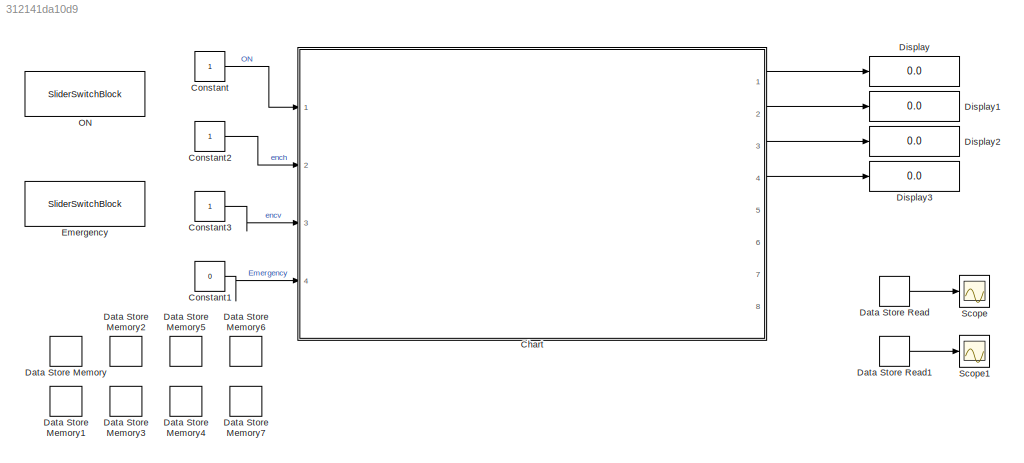
MODEL slx_312141da10d9
KIND model
CONFIG AbsTol = auto
CONFIG EnableMultiTasking = off
CONFIG FixedStep = auto
CONFIG MaxStep = auto
CONFIG MinStep = auto
CONFIG RelTol = 1e-3
CONFIG SampleTimeConstraint = Unconstrained
CONFIG SolverName = VariableStepAuto
CONFIG StartTime = 0.0
CONFIG StopTime = inf
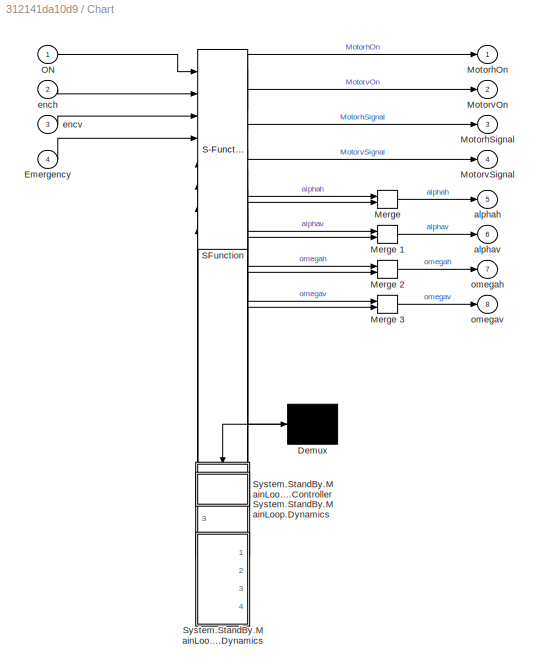
BLOCK [SubSystem] Chart
  ErrorFcn = Stateflow.Translate.translate
  PermitHierarchicalResolution = ExplicitOnly
  Ports = [4, 8]
  RequestExecContextInheritance = off
  SFBlockType = Chart
  TreatAsAtomicUnit = on
BLOCK [Demux] Chart/ Demux 
  Outputs = 1
  Ports = [1, 1]
BLOCK [Merge] Chart/ Merge 
  Ports = [2, 1]
BLOCK [Merge] Chart/ Merge 1
  Ports = [2, 1]
BLOCK [Merge] Chart/ Merge 2
  Ports = [2, 1]
BLOCK [Merge] Chart/ Merge 3
  Ports = [2, 1]
BLOCK [S-Function] Chart/ SFunction 
  EnableBusSupport = on
  FunctionName = sf_sfun
  PortCounts = [8 9]
  Ports = [8, 9]
  SFcnIsStateOwnerBlock = off
  SFunctionDeploymentMode = off
  Tag = Stateflow S-Function 3
BLOCK [Inport] Chart/Emergency
  Port = 4
BLOCK [Outport] Chart/MotorhOn
BLOCK [Outport] Chart/MotorhSignal
  Port = 3
BLOCK [Outport] Chart/MotorvOn
  Port = 2
BLOCK [Outport] Chart/MotorvSignal
  Port = 4
BLOCK [Inport] Chart/ON
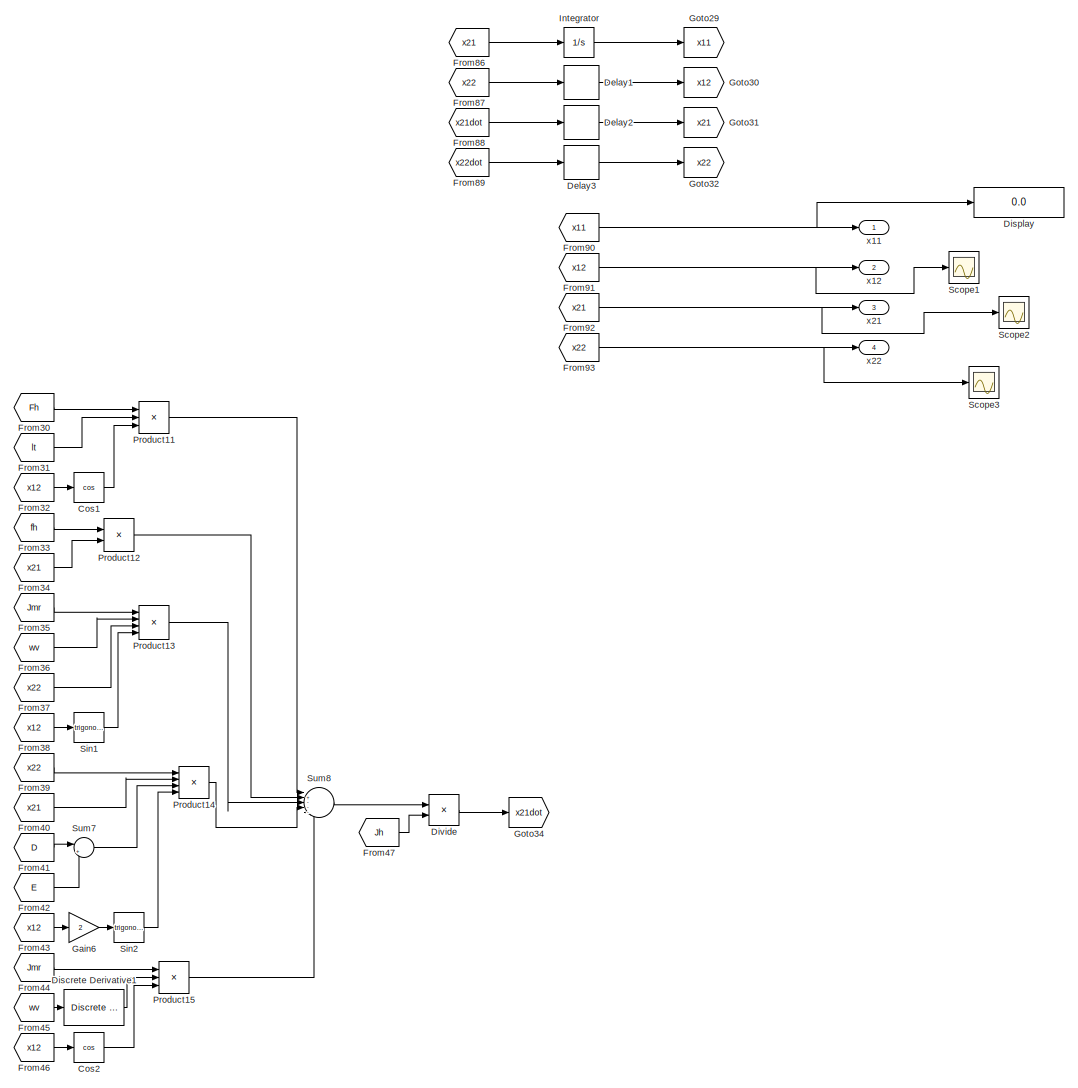
[diagram: Chart/System.StandBy.MainLoop.Dynamics - part 1/5, top right region]
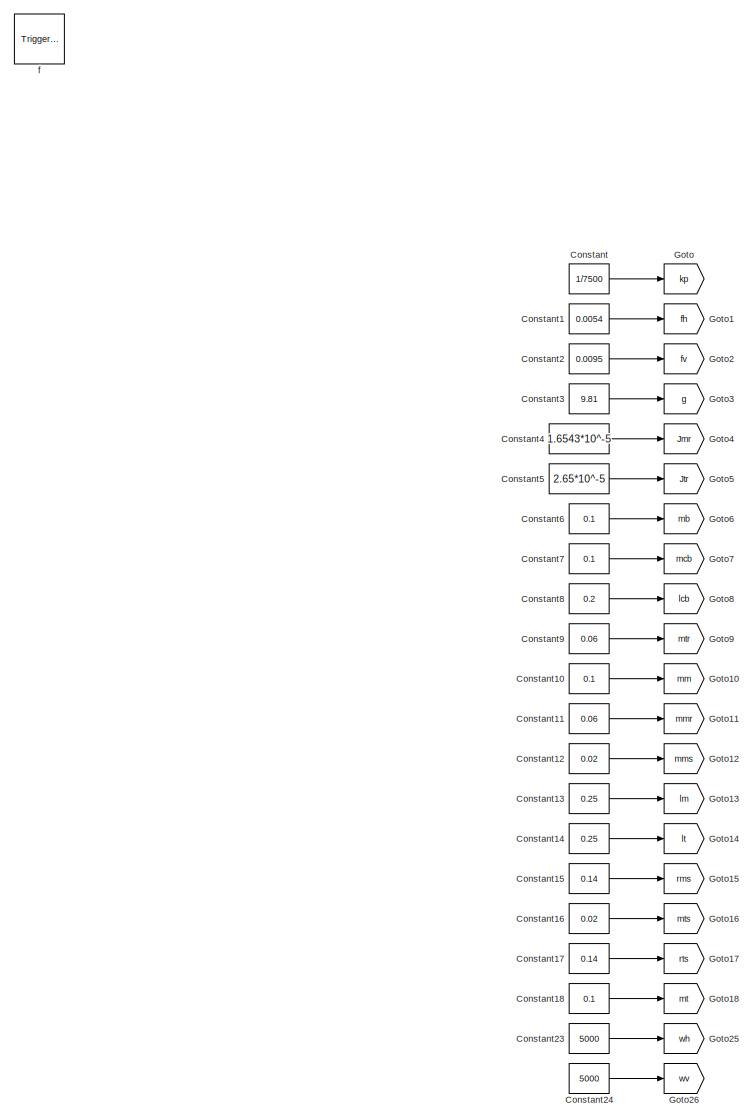
[diagram: Chart/System.StandBy.MainLoop.Dynamics - part 2/5, middle left region]
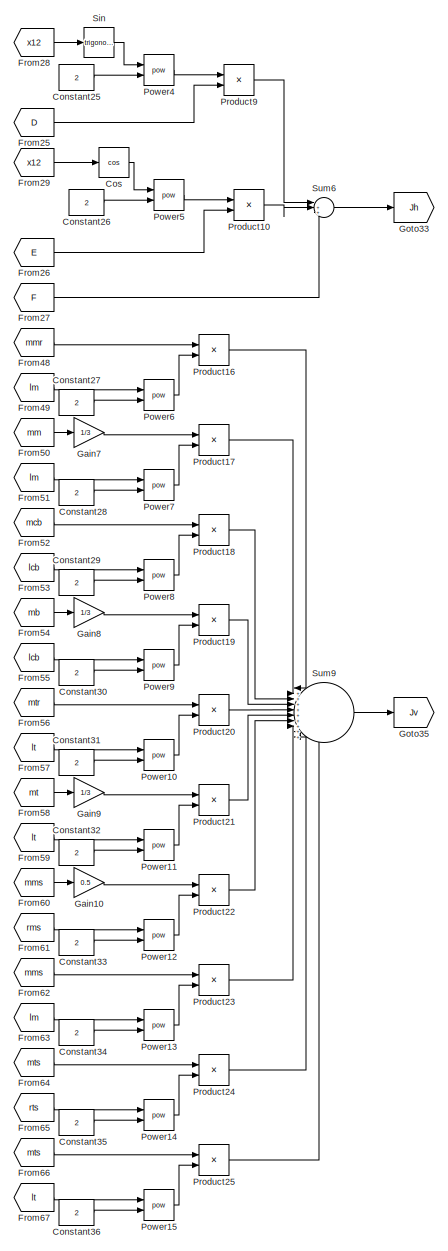
[diagram: Chart/System.StandBy.MainLoop.Dynamics - part 3/5, central region]
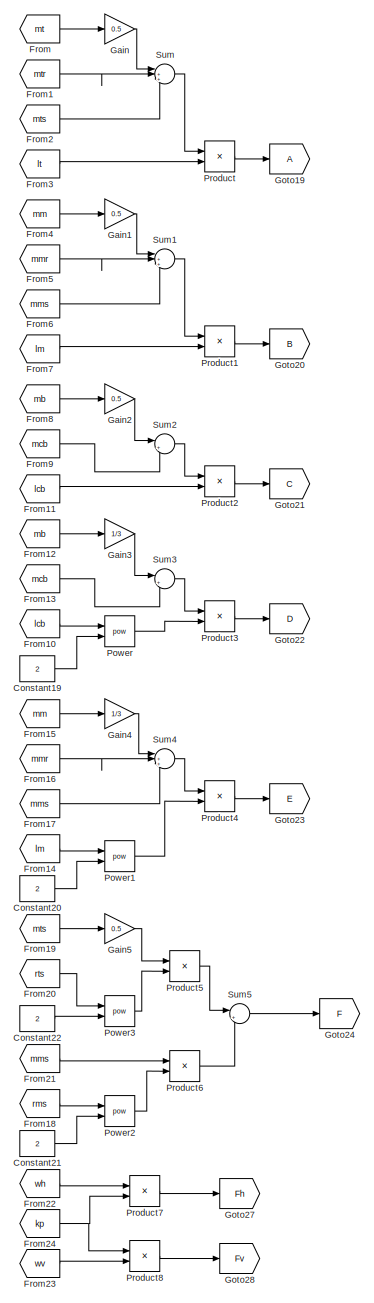
[diagram: Chart/System.StandBy.MainLoop.Dynamics - part 4/5, central region]
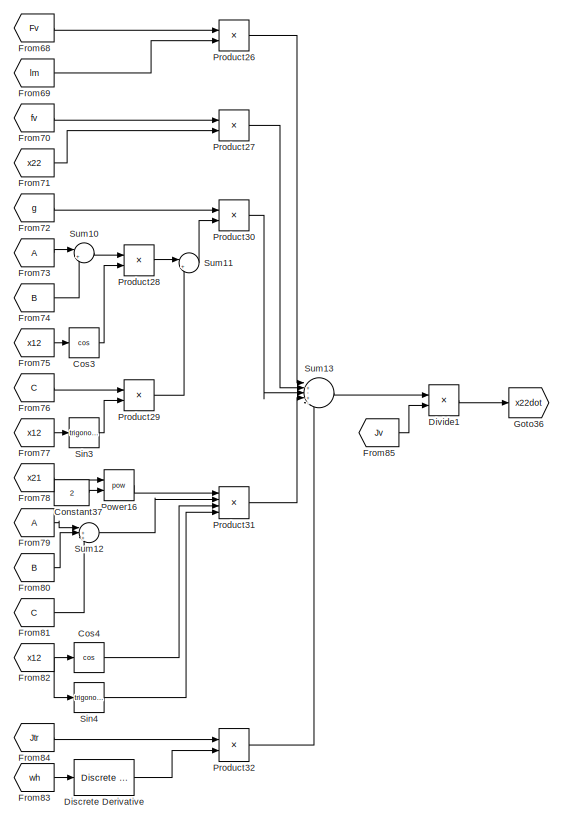
[diagram: Chart/System.StandBy.MainLoop.Dynamics - part 5/5, bottom right region]
BLOCK [SubSystem] Chart/System.StandBy.MainLoop.Dynamics
  Commented = on
  Ports = [0, 4, 0, 1]
  PreDeleteFcn = Stateflow.SLINSF.SimulinkMan.removePreDeleteFcn
  RequestExecContextInheritance = off
  UndoDeleteFcn = Stateflow.SLINSF.SimulinkMan.restorePreDeleteFcn
BLOCK [Constant] Chart/System.StandBy.MainLoop.Dynamics/Constant
  Value = 1/7500
BLOCK [Constant] Chart/System.StandBy.MainLoop.Dynamics/Constant1
  Value = 0.0054
BLOCK [Constant] Chart/System.StandBy.MainLoop.Dynamics/Constant10
  Value = 0.1
BLOCK [Constant] Chart/System.StandBy.MainLoop.Dynamics/Constant11
  Value = 0.06
BLOCK [Constant] Chart/System.StandBy.MainLoop.Dynamics/Constant12
  Value = 0.02
BLOCK [Constant] Chart/System.StandBy.MainLoop.Dynamics/Constant13
  Value = 0.25
BLOCK [Constant] Chart/System.StandBy.MainLoop.Dynamics/Constant14
  Value = 0.25
BLOCK [Constant] Chart/System.StandBy.MainLoop.Dynamics/Constant15
  Value = 0.14
BLOCK [Constant] Chart/System.StandBy.MainLoop.Dynamics/Constant16
  Value = 0.02
BLOCK [Constant] Chart/System.StandBy.MainLoop.Dynamics/Constant17
  Value = 0.14
BLOCK [Constant] Chart/System.StandBy.MainLoop.Dynamics/Constant18
  Value = 0.1
BLOCK [Constant] Chart/System.StandBy.MainLoop.Dynamics/Constant19
  Value = 2
BLOCK [Constant] Chart/System.StandBy.MainLoop.Dynamics/Constant2
  Value = 0.0095
BLOCK [Constant] Chart/System.StandBy.MainLoop.Dynamics/Constant20
  Value = 2
BLOCK [Constant] Chart/System.StandBy.MainLoop.Dynamics/Constant21
  Value = 2
BLOCK [Constant] Chart/System.StandBy.MainLoop.Dynamics/Constant22
  Value = 2
BLOCK [Constant] Chart/System.StandBy.MainLoop.Dynamics/Constant23
  Value = 5000
BLOCK [Constant] Chart/System.StandBy.MainLoop.Dynamics/Constant24
  Value = 5000
BLOCK [Constant] Chart/System.StandBy.MainLoop.Dynamics/Constant25
  Value = 2
BLOCK [Constant] Chart/System.StandBy.MainLoop.Dynamics/Constant26
  Value = 2
BLOCK [Constant] Chart/System.StandBy.MainLoop.Dynamics/Constant27
  Value = 2
BLOCK [Constant] Chart/System.StandBy.MainLoop.Dynamics/Constant28
  Value = 2
BLOCK [Constant] Chart/System.StandBy.MainLoop.Dynamics/Constant29
  Value = 2
BLOCK [Constant] Chart/System.StandBy.MainLoop.Dynamics/Constant3
  Value = 9.81
BLOCK [Constant] Chart/System.StandBy.MainLoop.Dynamics/Constant30
  Value = 2
BLOCK [Constant] Chart/System.StandBy.MainLoop.Dynamics/Constant31
  Value = 2
BLOCK [Constant] Chart/System.StandBy.MainLoop.Dynamics/Constant32
  Value = 2
BLOCK [Constant] Chart/System.StandBy.MainLoop.Dynamics/Constant33
  Value = 2
BLOCK [Constant] Chart/System.StandBy.MainLoop.Dynamics/Constant34
  Value = 2
BLOCK [Constant] Chart/System.StandBy.MainLoop.Dynamics/Constant35
  Value = 2
BLOCK [Constant] Chart/System.StandBy.MainLoop.Dynamics/Constant36
  Value = 2
BLOCK [Constant] Chart/System.StandBy.MainLoop.Dynamics/Constant37
  Value = 2
BLOCK [Constant] Chart/System.StandBy.MainLoop.Dynamics/Constant4
  Value = 1.6543*10^-5
BLOCK [Constant] Chart/System.StandBy.MainLoop.Dynamics/Constant5
  Value = 2.65*10^-5
BLOCK [Constant] Chart/System.StandBy.MainLoop.Dynamics/Constant6
  Value = 0.1
BLOCK [Constant] Chart/System.StandBy.MainLoop.Dynamics/Constant7
  Value = 0.1
BLOCK [Constant] Chart/System.StandBy.MainLoop.Dynamics/Constant8
  Value = 0.2
BLOCK [Constant] Chart/System.StandBy.MainLoop.Dynamics/Constant9
  Value = 0.06
BLOCK [Trigonometry] Chart/System.StandBy.MainLoop.Dynamics/Cos
  Operator = cos
  Ports = [1, 1]
BLOCK [Trigonometry] Chart/System.StandBy.MainLoop.Dynamics/Cos1
  Operator = cos
  Ports = [1, 1]
BLOCK [Trigonometry] Chart/System.StandBy.MainLoop.Dynamics/Cos2
  Operator = cos
  Ports = [1, 1]
BLOCK [Trigonometry] Chart/System.StandBy.MainLoop.Dynamics/Cos3
  Operator = cos
  Ports = [1, 1]
BLOCK [Trigonometry] Chart/System.StandBy.MainLoop.Dynamics/Cos4
  Operator = cos
  Ports = [1, 1]
BLOCK [Delay] Chart/System.StandBy.MainLoop.Dynamics/Delay1
  InputPortMap = u0
  Ports = [1, 1]
BLOCK [Delay] Chart/System.StandBy.MainLoop.Dynamics/Delay2
  InputPortMap = u0
  Ports = [1, 1]
BLOCK [Delay] Chart/System.StandBy.MainLoop.Dynamics/Delay3
  InputPortMap = u0
  Ports = [1, 1]
BLOCK [Reference] Chart/System.StandBy.MainLoop.Dynamics/Discrete Derivative  REF=simulink/Discrete/Discrete Derivative
  Ports = [1, 1]
  SourceBlock = simulink/Discrete/Discrete Derivative
  SourceProductBaseCode = SL
  SourceType = Discrete Derivative
BLOCK [Reference] Chart/System.StandBy.MainLoop.Dynamics/Discrete Derivative1  REF=simulink/Discrete/Discrete Derivative
  Ports = [1, 1]
  SourceBlock = simulink/Discrete/Discrete Derivative
  SourceProductBaseCode = SL
  SourceType = Discrete Derivative
BLOCK [Display] Chart/System.StandBy.MainLoop.Dynamics/Display
  Decimation = 1
  Ports = [1]
BLOCK [Product] Chart/System.StandBy.MainLoop.Dynamics/Divide
  Inputs = */
  Ports = [2, 1]
BLOCK [Product] Chart/System.StandBy.MainLoop.Dynamics/Divide1
  Inputs = */
  Ports = [2, 1]
BLOCK [From] Chart/System.StandBy.MainLoop.Dynamics/From
  GotoTag = mt
BLOCK [From] Chart/System.StandBy.MainLoop.Dynamics/From1
  GotoTag = mtr
BLOCK [From] Chart/System.StandBy.MainLoop.Dynamics/From10
  GotoTag = lcb
BLOCK [From] Chart/System.StandBy.MainLoop.Dynamics/From11
  GotoTag = lcb
BLOCK [From] Chart/System.StandBy.MainLoop.Dynamics/From12
  GotoTag = mb
BLOCK [From] Chart/System.StandBy.MainLoop.Dynamics/From13
  GotoTag = mcb
BLOCK [From] Chart/System.StandBy.MainLoop.Dynamics/From14
  GotoTag = lm
BLOCK [From] Chart/System.StandBy.MainLoop.Dynamics/From15
  GotoTag = mm
BLOCK [From] Chart/System.StandBy.MainLoop.Dynamics/From16
  GotoTag = mmr
BLOCK [From] Chart/System.StandBy.MainLoop.Dynamics/From17
  GotoTag = mms
BLOCK [From] Chart/System.StandBy.MainLoop.Dynamics/From18
  GotoTag = rms
BLOCK [From] Chart/System.StandBy.MainLoop.Dynamics/From19
  GotoTag = mts
BLOCK [From] Chart/System.StandBy.MainLoop.Dynamics/From2
  GotoTag = mts
BLOCK [From] Chart/System.StandBy.MainLoop.Dynamics/From20
  GotoTag = rts
BLOCK [From] Chart/System.StandBy.MainLoop.Dynamics/From21
  GotoTag = mms
BLOCK [From] Chart/System.StandBy.MainLoop.Dynamics/From22
  GotoTag = wh
BLOCK [From] Chart/System.StandBy.MainLoop.Dynamics/From23
  GotoTag = wv
BLOCK [From] Chart/System.StandBy.MainLoop.Dynamics/From24
  GotoTag = kp
BLOCK [From] Chart/System.StandBy.MainLoop.Dynamics/From25
  GotoTag = D
BLOCK [From] Chart/System.StandBy.MainLoop.Dynamics/From26
  GotoTag = E
BLOCK [From] Chart/System.StandBy.MainLoop.Dynamics/From27
  GotoTag = F
BLOCK [From] Chart/System.StandBy.MainLoop.Dynamics/From28
  GotoTag = x12
BLOCK [From] Chart/System.StandBy.MainLoop.Dynamics/From29
  GotoTag = x12
BLOCK [From] Chart/System.StandBy.MainLoop.Dynamics/From3
  GotoTag = lt
BLOCK [From] Chart/System.StandBy.MainLoop.Dynamics/From30
  GotoTag = Fh
BLOCK [From] Chart/System.StandBy.MainLoop.Dynamics/From31
  GotoTag = lt
BLOCK [From] Chart/System.StandBy.MainLoop.Dynamics/From32
  GotoTag = x12
BLOCK [From] Chart/System.StandBy.MainLoop.Dynamics/From33
  GotoTag = fh
BLOCK [From] Chart/System.StandBy.MainLoop.Dynamics/From34
  GotoTag = x21
BLOCK [From] Chart/System.StandBy.MainLoop.Dynamics/From35
  GotoTag = Jmr
BLOCK [From] Chart/System.StandBy.MainLoop.Dynamics/From36
  GotoTag = wv
BLOCK [From] Chart/System.StandBy.MainLoop.Dynamics/From37
  GotoTag = x22
BLOCK [From] Chart/System.StandBy.MainLoop.Dynamics/From38
  GotoTag = x12
BLOCK [From] Chart/System.StandBy.MainLoop.Dynamics/From39
  GotoTag = x22
BLOCK [From] Chart/System.StandBy.MainLoop.Dynamics/From4
  GotoTag = mm
BLOCK [From] Chart/System.StandBy.MainLoop.Dynamics/From40
  GotoTag = x21
BLOCK [From] Chart/System.StandBy.MainLoop.Dynamics/From41
  GotoTag = D
BLOCK [From] Chart/System.StandBy.MainLoop.Dynamics/From42
  GotoTag = E
BLOCK [From] Chart/System.StandBy.MainLoop.Dynamics/From43
  GotoTag = x12
BLOCK [From] Chart/System.StandBy.MainLoop.Dynamics/From44
  GotoTag = Jmr
BLOCK [From] Chart/System.StandBy.MainLoop.Dynamics/From45
  GotoTag = wv
BLOCK [From] Chart/System.StandBy.MainLoop.Dynamics/From46
  GotoTag = x12
BLOCK [From] Chart/System.StandBy.MainLoop.Dynamics/From47
  GotoTag = Jh
BLOCK [From] Chart/System.StandBy.MainLoop.Dynamics/From48
  GotoTag = mmr
BLOCK [From] Chart/System.StandBy.MainLoop.Dynamics/From49
  GotoTag = lm
BLOCK [From] Chart/System.StandBy.MainLoop.Dynamics/From5
  GotoTag = mmr
BLOCK [From] Chart/System.StandBy.MainLoop.Dynamics/From50
  GotoTag = mm
BLOCK [From] Chart/System.StandBy.MainLoop.Dynamics/From51
  GotoTag = lm
BLOCK [From] Chart/System.StandBy.MainLoop.Dynamics/From52
  GotoTag = mcb
BLOCK [From] Chart/System.StandBy.MainLoop.Dynamics/From53
  GotoTag = lcb
BLOCK [From] Chart/System.StandBy.MainLoop.Dynamics/From54
  GotoTag = mb
BLOCK [From] Chart/System.StandBy.MainLoop.Dynamics/From55
  GotoTag = lcb
BLOCK [From] Chart/System.StandBy.MainLoop.Dynamics/From56
  GotoTag = mtr
BLOCK [From] Chart/System.StandBy.MainLoop.Dynamics/From57
  GotoTag = lt
BLOCK [From] Chart/System.StandBy.MainLoop.Dynamics/From58
  GotoTag = mt
BLOCK [From] Chart/System.StandBy.MainLoop.Dynamics/From59
  GotoTag = lt
BLOCK [From] Chart/System.StandBy.MainLoop.Dynamics/From6
  GotoTag = mms
BLOCK [From] Chart/System.StandBy.MainLoop.Dynamics/From60
  GotoTag = mms
BLOCK [From] Chart/System.StandBy.MainLoop.Dynamics/From61
  GotoTag = rms
BLOCK [From] Chart/System.StandBy.MainLoop.Dynamics/From62
  GotoTag = mms
BLOCK [From] Chart/System.StandBy.MainLoop.Dynamics/From63
  GotoTag = lm
BLOCK [From] Chart/System.StandBy.MainLoop.Dynamics/From64
  GotoTag = mts
BLOCK [From] Chart/System.StandBy.MainLoop.Dynamics/From65
  GotoTag = rts
BLOCK [From] Chart/System.StandBy.MainLoop.Dynamics/From66
  GotoTag = mts
BLOCK [From] Chart/System.StandBy.MainLoop.Dynamics/From67
  GotoTag = lt
BLOCK [From] Chart/System.StandBy.MainLoop.Dynamics/From68
  GotoTag = Fv
BLOCK [From] Chart/System.StandBy.MainLoop.Dynamics/From69
  GotoTag = lm
BLOCK [From] Chart/System.StandBy.MainLoop.Dynamics/From7
  GotoTag = lm
BLOCK [From] Chart/System.StandBy.MainLoop.Dynamics/From70
  GotoTag = fv
BLOCK [From] Chart/System.StandBy.MainLoop.Dynamics/From71
  GotoTag = x22
BLOCK [From] Chart/System.StandBy.MainLoop.Dynamics/From72
  GotoTag = g
BLOCK [From] Chart/System.StandBy.MainLoop.Dynamics/From73
BLOCK [From] Chart/System.StandBy.MainLoop.Dynamics/From74
  GotoTag = B
BLOCK [From] Chart/System.StandBy.MainLoop.Dynamics/From75
  GotoTag = x12
BLOCK [From] Chart/System.StandBy.MainLoop.Dynamics/From76
  GotoTag = C
BLOCK [From] Chart/System.StandBy.MainLoop.Dynamics/From77
  GotoTag = x12
BLOCK [From] Chart/System.StandBy.MainLoop.Dynamics/From78
  GotoTag = x21
BLOCK [From] Chart/System.StandBy.MainLoop.Dynamics/From79
BLOCK [From] Chart/System.StandBy.MainLoop.Dynamics/From8
  GotoTag = mb
BLOCK [From] Chart/System.StandBy.MainLoop.Dynamics/From80
  GotoTag = B
BLOCK [From] Chart/System.StandBy.MainLoop.Dynamics/From81
  GotoTag = C
BLOCK [From] Chart/System.StandBy.MainLoop.Dynamics/From82
  GotoTag = x12
BLOCK [From] Chart/System.StandBy.MainLoop.Dynamics/From83
  GotoTag = wh
BLOCK [From] Chart/System.StandBy.MainLoop.Dynamics/From84
  GotoTag = Jtr
BLOCK [From] Chart/System.StandBy.MainLoop.Dynamics/From85
  GotoTag = Jv
BLOCK [From] Chart/System.StandBy.MainLoop.Dynamics/From86
  GotoTag = x21
BLOCK [From] Chart/System.StandBy.MainLoop.Dynamics/From87
  GotoTag = x22
BLOCK [From] Chart/System.StandBy.MainLoop.Dynamics/From88
  GotoTag = x21dot
BLOCK [From] Chart/System.StandBy.MainLoop.Dynamics/From89
  GotoTag = x22dot
BLOCK [From] Chart/System.StandBy.MainLoop.Dynamics/From9
  GotoTag = mcb
BLOCK [From] Chart/System.StandBy.MainLoop.Dynamics/From90
  GotoTag = x11
BLOCK [From] Chart/System.StandBy.MainLoop.Dynamics/From91
  GotoTag = x12
BLOCK [From] Chart/System.StandBy.MainLoop.Dynamics/From92
  GotoTag = x21
BLOCK [From] Chart/System.StandBy.MainLoop.Dynamics/From93
  GotoTag = x22
BLOCK [Gain] Chart/System.StandBy.MainLoop.Dynamics/Gain
  Gain = 0.5
BLOCK [Gain] Chart/System.StandBy.MainLoop.Dynamics/Gain1
  Gain = 0.5
BLOCK [Gain] Chart/System.StandBy.MainLoop.Dynamics/Gain10
  Gain = 0.5
BLOCK [Gain] Chart/System.StandBy.MainLoop.Dynamics/Gain2
  Gain = 0.5
BLOCK [Gain] Chart/System.StandBy.MainLoop.Dynamics/Gain3
  Gain = 1/3
BLOCK [Gain] Chart/System.StandBy.MainLoop.Dynamics/Gain4
  Gain = 1/3
BLOCK [Gain] Chart/System.StandBy.MainLoop.Dynamics/Gain5
  Gain = 0.5
BLOCK [Gain] Chart/System.StandBy.MainLoop.Dynamics/Gain6
  Gain = 2
BLOCK [Gain] Chart/System.StandBy.MainLoop.Dynamics/Gain7
  Gain = 1/3
BLOCK [Gain] Chart/System.StandBy.MainLoop.Dynamics/Gain8
  Gain = 1/3
BLOCK [Gain] Chart/System.StandBy.MainLoop.Dynamics/Gain9
  Gain = 1/3
BLOCK [Goto] Chart/System.StandBy.MainLoop.Dynamics/Goto
  GotoTag = kp
BLOCK [Goto] Chart/System.StandBy.MainLoop.Dynamics/Goto1
  GotoTag = fh
BLOCK [Goto] Chart/System.StandBy.MainLoop.Dynamics/Goto10
  GotoTag = mm
BLOCK [Goto] Chart/System.StandBy.MainLoop.Dynamics/Goto11
  GotoTag = mmr
BLOCK [Goto] Chart/System.StandBy.MainLoop.Dynamics/Goto12
  GotoTag = mms
BLOCK [Goto] Chart/System.StandBy.MainLoop.Dynamics/Goto13
  GotoTag = lm
BLOCK [Goto] Chart/System.StandBy.MainLoop.Dynamics/Goto14
  GotoTag = lt
BLOCK [Goto] Chart/System.StandBy.MainLoop.Dynamics/Goto15
  GotoTag = rms
BLOCK [Goto] Chart/System.StandBy.MainLoop.Dynamics/Goto16
  GotoTag = mts
BLOCK [Goto] Chart/System.StandBy.MainLoop.Dynamics/Goto17
  GotoTag = rts
BLOCK [Goto] Chart/System.StandBy.MainLoop.Dynamics/Goto18
  GotoTag = mt
BLOCK [Goto] Chart/System.StandBy.MainLoop.Dynamics/Goto19
BLOCK [Goto] Chart/System.StandBy.MainLoop.Dynamics/Goto2
  GotoTag = fv
BLOCK [Goto] Chart/System.StandBy.MainLoop.Dynamics/Goto20
  GotoTag = B
BLOCK [Goto] Chart/System.StandBy.MainLoop.Dynamics/Goto21
  GotoTag = C
BLOCK [Goto] Chart/System.StandBy.MainLoop.Dynamics/Goto22
  GotoTag = D
BLOCK [Goto] Chart/System.StandBy.MainLoop.Dynamics/Goto23
  GotoTag = E
BLOCK [Goto] Chart/System.StandBy.MainLoop.Dynamics/Goto24
  GotoTag = F
BLOCK [Goto] Chart/System.StandBy.MainLoop.Dynamics/Goto25
  GotoTag = wh
BLOCK [Goto] Chart/System.StandBy.MainLoop.Dynamics/Goto26
  GotoTag = wv
BLOCK [Goto] Chart/System.StandBy.MainLoop.Dynamics/Goto27
  GotoTag = Fh
BLOCK [Goto] Chart/System.StandBy.MainLoop.Dynamics/Goto28
  GotoTag = Fv
BLOCK [Goto] Chart/System.StandBy.MainLoop.Dynamics/Goto29
  GotoTag = x11
BLOCK [Goto] Chart/System.StandBy.MainLoop.Dynamics/Goto3
  GotoTag = g
BLOCK [Goto] Chart/System.StandBy.MainLoop.Dynamics/Goto30
  GotoTag = x12
BLOCK [Goto] Chart/System.StandBy.MainLoop.Dynamics/Goto31
  GotoTag = x21
BLOCK [Goto] Chart/System.StandBy.MainLoop.Dynamics/Goto32
  GotoTag = x22
BLOCK [Goto] Chart/System.StandBy.MainLoop.Dynamics/Goto33
  GotoTag = Jh
BLOCK [Goto] Chart/System.StandBy.MainLoop.Dynamics/Goto34
  GotoTag = x21dot
BLOCK [Goto] Chart/System.StandBy.MainLoop.Dynamics/Goto35
  GotoTag = Jv
BLOCK [Goto] Chart/System.StandBy.MainLoop.Dynamics/Goto36
  GotoTag = x22dot
BLOCK [Goto] Chart/System.StandBy.MainLoop.Dynamics/Goto4
  GotoTag = Jmr
BLOCK [Goto] Chart/System.StandBy.MainLoop.Dynamics/Goto5
  GotoTag = Jtr
BLOCK [Goto] Chart/System.StandBy.MainLoop.Dynamics/Goto6
  GotoTag = mb
BLOCK [Goto] Chart/System.StandBy.MainLoop.Dynamics/Goto7
  GotoTag = mcb
BLOCK [Goto] Chart/System.StandBy.MainLoop.Dynamics/Goto8
  GotoTag = lcb
BLOCK [Goto] Chart/System.StandBy.MainLoop.Dynamics/Goto9
  GotoTag = mtr
BLOCK [Integrator] Chart/System.StandBy.MainLoop.Dynamics/Integrator
  Ports = [1, 1]
BLOCK [Math] Chart/System.StandBy.MainLoop.Dynamics/Power
  Operator = pow
  Ports = [2, 1]
BLOCK [Math] Chart/System.StandBy.MainLoop.Dynamics/Power1
  Operator = pow
  Ports = [2, 1]
BLOCK [Math] Chart/System.StandBy.MainLoop.Dynamics/Power10
  Operator = pow
  Ports = [2, 1]
BLOCK [Math] Chart/System.StandBy.MainLoop.Dynamics/Power11
  Operator = pow
  Ports = [2, 1]
BLOCK [Math] Chart/System.StandBy.MainLoop.Dynamics/Power12
  Operator = pow
  Ports = [2, 1]
BLOCK [Math] Chart/System.StandBy.MainLoop.Dynamics/Power13
  Operator = pow
  Ports = [2, 1]
BLOCK [Math] Chart/System.StandBy.MainLoop.Dynamics/Power14
  Operator = pow
  Ports = [2, 1]
BLOCK [Math] Chart/System.StandBy.MainLoop.Dynamics/Power15
  Operator = pow
  Ports = [2, 1]
BLOCK [Math] Chart/System.StandBy.MainLoop.Dynamics/Power16
  Operator = pow
  Ports = [2, 1]
BLOCK [Math] Chart/System.StandBy.MainLoop.Dynamics/Power2
  Operator = pow
  Ports = [2, 1]
BLOCK [Math] Chart/System.StandBy.MainLoop.Dynamics/Power3
  Operator = pow
  Ports = [2, 1]
BLOCK [Math] Chart/System.StandBy.MainLoop.Dynamics/Power4
  Operator = pow
  Ports = [2, 1]
BLOCK [Math] Chart/System.StandBy.MainLoop.Dynamics/Power5
  Operator = pow
  Ports = [2, 1]
BLOCK [Math] Chart/System.StandBy.MainLoop.Dynamics/Power6
  Operator = pow
  Ports = [2, 1]
BLOCK [Math] Chart/System.StandBy.MainLoop.Dynamics/Power7
  Operator = pow
  Ports = [2, 1]
BLOCK [Math] Chart/System.StandBy.MainLoop.Dynamics/Power8
  Operator = pow
  Ports = [2, 1]
BLOCK [Math] Chart/System.StandBy.MainLoop.Dynamics/Power9
  Operator = pow
  Ports = [2, 1]
BLOCK [Product] Chart/System.StandBy.MainLoop.Dynamics/Product
  Ports = [2, 1]
BLOCK [Product] Chart/System.StandBy.MainLoop.Dynamics/Product1
  Ports = [2, 1]
BLOCK [Product] Chart/System.StandBy.MainLoop.Dynamics/Product10
  Ports = [2, 1]
BLOCK [Product] Chart/System.StandBy.MainLoop.Dynamics/Product11
  Inputs = 3
  Ports = [3, 1]
BLOCK [Product] Chart/System.StandBy.MainLoop.Dynamics/Product12
  Ports = [2, 1]
BLOCK [Product] Chart/System.StandBy.MainLoop.Dynamics/Product13
  Inputs = 4
  Ports = [4, 1]
BLOCK [Product] Chart/System.StandBy.MainLoop.Dynamics/Product14
  Inputs = 4
  Ports = [4, 1]
BLOCK [Product] Chart/System.StandBy.MainLoop.Dynamics/Product15
  Inputs = 3
  Ports = [3, 1]
BLOCK [Product] Chart/System.StandBy.MainLoop.Dynamics/Product16
  Ports = [2, 1]
BLOCK [Product] Chart/System.StandBy.MainLoop.Dynamics/Product17
  Ports = [2, 1]
BLOCK [Product] Chart/System.StandBy.MainLoop.Dynamics/Product18
  Ports = [2, 1]
BLOCK [Product] Chart/System.StandBy.MainLoop.Dynamics/Product19
  Ports = [2, 1]
BLOCK [Product] Chart/System.StandBy.MainLoop.Dynamics/Product2
  Ports = [2, 1]
BLOCK [Product] Chart/System.StandBy.MainLoop.Dynamics/Product20
  Ports = [2, 1]
BLOCK [Product] Chart/System.StandBy.MainLoop.Dynamics/Product21
  Ports = [2, 1]
BLOCK [Product] Chart/System.StandBy.MainLoop.Dynamics/Product22
  Ports = [2, 1]
BLOCK [Product] Chart/System.StandBy.MainLoop.Dynamics/Product23
  Ports = [2, 1]
BLOCK [Product] Chart/System.StandBy.MainLoop.Dynamics/Product24
  Ports = [2, 1]
BLOCK [Product] Chart/System.StandBy.MainLoop.Dynamics/Product25
  Ports = [2, 1]
BLOCK [Product] Chart/System.StandBy.MainLoop.Dynamics/Product26
  Ports = [2, 1]
BLOCK [Product] Chart/System.StandBy.MainLoop.Dynamics/Product27
  Ports = [2, 1]
BLOCK [Product] Chart/System.StandBy.MainLoop.Dynamics/Product28
  Ports = [2, 1]
BLOCK [Product] Chart/System.StandBy.MainLoop.Dynamics/Product29
  Ports = [2, 1]
BLOCK [Product] Chart/System.StandBy.MainLoop.Dynamics/Product3
  Ports = [2, 1]
BLOCK [Product] Chart/System.StandBy.MainLoop.Dynamics/Product30
  Ports = [2, 1]
BLOCK [Product] Chart/System.StandBy.MainLoop.Dynamics/Product31
  Inputs = 4
  Ports = [4, 1]
BLOCK [Product] Chart/System.StandBy.MainLoop.Dynamics/Product32
  Ports = [2, 1]
BLOCK [Product] Chart/System.StandBy.MainLoop.Dynamics/Product4
  Ports = [2, 1]
BLOCK [Product] Chart/System.StandBy.MainLoop.Dynamics/Product5
  Ports = [2, 1]
BLOCK [Product] Chart/System.StandBy.MainLoop.Dynamics/Product6
  Ports = [2, 1]
BLOCK [Product] Chart/System.StandBy.MainLoop.Dynamics/Product7
  Ports = [2, 1]
BLOCK [Product] Chart/System.StandBy.MainLoop.Dynamics/Product8
  Ports = [2, 1]
BLOCK [Product] Chart/System.StandBy.MainLoop.Dynamics/Product9
  Ports = [2, 1]
BLOCK [Scope] Chart/System.StandBy.MainLoop.Dynamics/Scope1
  Floating = off
  NumInputPorts = 1
  Ports = [1]
  ScopeSpecificationString = Simulink.scopes.TimeScopeBlockCfg('CurrentConfiguration', extmgr.ConfigurationSet(extmgr.Configuration('Core','General UI',true),extmgr.Configuration('Core','Source UI',true),extmgr.Configuration('Sources','WiredSimulink',true,'DataLoggingVariableName','ScopeData1'),extmgr.Configuration('Visuals','Time Domain',true,'SerializedDisplays',{struct('MinYLimReal','-1.00000','MaxYLimReal','1.00000','YLab...<+1423ch>
BLOCK [Scope] Chart/System.StandBy.MainLoop.Dynamics/Scope2
  Floating = off
  NumInputPorts = 1
  Ports = [1]
  ScopeSpecificationString = Simulink.scopes.TimeScopeBlockCfg('CurrentConfiguration', extmgr.ConfigurationSet(extmgr.Configuration('Core','General UI',true),extmgr.Configuration('Core','Source UI',true),extmgr.Configuration('Sources','WiredSimulink',true,'DataLoggingVariableName','ScopeData2'),extmgr.Configuration('Visuals','Time Domain',true,'SerializedDisplays',{struct('MinYLimReal','-1.00000','MaxYLimReal','1.00000','YLab...<+1390ch>
BLOCK [Scope] Chart/System.StandBy.MainLoop.Dynamics/Scope3
  Floating = off
  NumInputPorts = 1
  Ports = [1]
  ScopeSpecificationString = Simulink.scopes.TimeScopeBlockCfg('CurrentConfiguration', extmgr.ConfigurationSet(extmgr.Configuration('Core','General UI',true),extmgr.Configuration('Core','Source UI',true),extmgr.Configuration('Sources','WiredSimulink',true,'DataLoggingVariableName','ScopeData3'),extmgr.Configuration('Visuals','Time Domain',true,'SerializedDisplays',{struct('MinYLimReal','-10','MaxYLimReal','10','YLabelReal',''...<+766ch>
BLOCK [Trigonometry] Chart/System.StandBy.MainLoop.Dynamics/Sin
  Ports = [1, 1]
BLOCK [Trigonometry] Chart/System.StandBy.MainLoop.Dynamics/Sin1
  Ports = [1, 1]
BLOCK [Trigonometry] Chart/System.StandBy.MainLoop.Dynamics/Sin2
  Ports = [1, 1]
BLOCK [Trigonometry] Chart/System.StandBy.MainLoop.Dynamics/Sin3
  Ports = [1, 1]
BLOCK [Trigonometry] Chart/System.StandBy.MainLoop.Dynamics/Sin4
  Ports = [1, 1]
BLOCK [Sum] Chart/System.StandBy.MainLoop.Dynamics/Sum
  Inputs = |+++
  Ports = [3, 1]
BLOCK [Sum] Chart/System.StandBy.MainLoop.Dynamics/Sum1
  Inputs = |+++
  Ports = [3, 1]
BLOCK [Sum] Chart/System.StandBy.MainLoop.Dynamics/Sum10
  Inputs = |+-
  Ports = [2, 1]
BLOCK [Sum] Chart/System.StandBy.MainLoop.Dynamics/Sum11
  Inputs = |+-
  Ports = [2, 1]
BLOCK [Sum] Chart/System.StandBy.MainLoop.Dynamics/Sum12
  Inputs = |+++
  Ports = [3, 1]
BLOCK [Sum] Chart/System.StandBy.MainLoop.Dynamics/Sum13
  Inputs = |+-+-+
  Ports = [5, 1]
BLOCK [Sum] Chart/System.StandBy.MainLoop.Dynamics/Sum2
  Inputs = |++
  Ports = [2, 1]
BLOCK [Sum] Chart/System.StandBy.MainLoop.Dynamics/Sum3
  Inputs = |++
  Ports = [2, 1]
BLOCK [Sum] Chart/System.StandBy.MainLoop.Dynamics/Sum4
  Inputs = |+++
  Ports = [3, 1]
BLOCK [Sum] Chart/System.StandBy.MainLoop.Dynamics/Sum5
  Inputs = |++
  Ports = [2, 1]
BLOCK [Sum] Chart/System.StandBy.MainLoop.Dynamics/Sum6
  Inputs = |+++
  Ports = [3, 1]
BLOCK [Sum] Chart/System.StandBy.MainLoop.Dynamics/Sum7
  Inputs = |+-
  Ports = [2, 1]
BLOCK [Sum] Chart/System.StandBy.MainLoop.Dynamics/Sum8
  Inputs = |+---+
  Ports = [5, 1]
BLOCK [Sum] Chart/System.StandBy.MainLoop.Dynamics/Sum9
  Inputs = |++++++++++
  Ports = [10, 1]
BLOCK [TriggerPort] Chart/System.StandBy.MainLoop.Dynamics/f
  CopyFcn = Stateflow.SLINSF.SimulinkMan.removeBlockPreDeleteFcn
  Ports = []
  PreDeleteFcn = Stateflow.SLINSF.SimulinkMan.unsafePredeleteFcn
  SampleTime = -1
  StatesWhenEnabling = held
  TriggerType = function-call
  VariantControl = (inherit)
BLOCK [Outport] Chart/System.StandBy.MainLoop.Dynamics/x11
BLOCK [Outport] Chart/System.StandBy.MainLoop.Dynamics/x12
  Port = 2
BLOCK [Outport] Chart/System.StandBy.MainLoop.Dynamics/x21
  Port = 3
BLOCK [Outport] Chart/System.StandBy.MainLoop.Dynamics/x22
  Port = 4
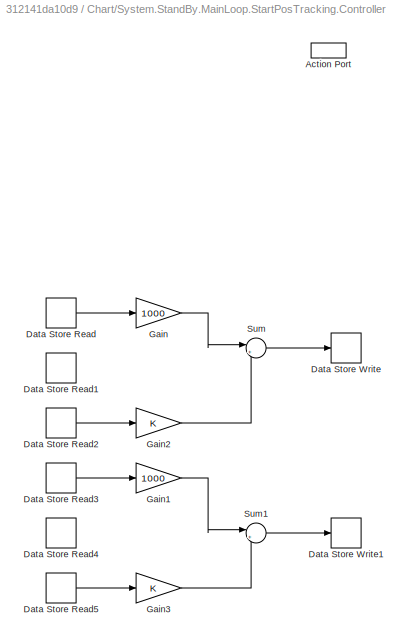
BLOCK [SubSystem] Chart/System.StandBy.MainLoop.StartPosTracking.Controller
  Ports = [0, 0, 0, 0, 0, 0, 0, 1]
  PreDeleteFcn = Stateflow.SLINSF.SimulinkMan.removePreDeleteFcn
  RequestExecContextInheritance = off
  UndoDeleteFcn = Stateflow.SLINSF.SimulinkMan.restorePreDeleteFcn
BLOCK [ActionPort] Chart/System.StandBy.MainLoop.StartPosTracking.Controller/Action Port
  CopyFcn = Stateflow.SLINSF.SimulinkMan.removeBlockPreDeleteFcn
  PreDeleteFcn = Stateflow.SLINSF.SimulinkMan.unsafePredeleteFcn
BLOCK [DataStoreRead] Chart/System.StandBy.MainLoop.StartPosTracking.Controller/Data Store Read
  DataStoreName = e1
  Ports = [0, 1]
BLOCK [DataStoreRead] Chart/System.StandBy.MainLoop.StartPosTracking.Controller/Data Store Read1
  DataStoreName = e1d
  Ports = [0, 1]
BLOCK [DataStoreRead] Chart/System.StandBy.MainLoop.StartPosTracking.Controller/Data Store Read2
  DataStoreName = e1i
  Ports = [0, 1]
BLOCK [DataStoreRead] Chart/System.StandBy.MainLoop.StartPosTracking.Controller/Data Store Read3
  DataStoreName = e2
  Ports = [0, 1]
BLOCK [DataStoreRead] Chart/System.StandBy.MainLoop.StartPosTracking.Controller/Data Store Read4
  DataStoreName = e2d
  Ports = [0, 1]
BLOCK [DataStoreRead] Chart/System.StandBy.MainLoop.StartPosTracking.Controller/Data Store Read5
  DataStoreName = e2i
  Ports = [0, 1]
BLOCK [DataStoreWrite] Chart/System.StandBy.MainLoop.StartPosTracking.Controller/Data Store Write
  DataStoreName = wh
  Ports = [1]
BLOCK [DataStoreWrite] Chart/System.StandBy.MainLoop.StartPosTracking.Controller/Data Store Write1
  DataStoreName = wv
  Ports = [1]
BLOCK [Gain] Chart/System.StandBy.MainLoop.StartPosTracking.Controller/Gain
  Gain = 1000
BLOCK [Gain] Chart/System.StandBy.MainLoop.StartPosTracking.Controller/Gain1
  Gain = 1000
BLOCK [Gain] Chart/System.StandBy.MainLoop.StartPosTracking.Controller/Gain2
BLOCK [Gain] Chart/System.StandBy.MainLoop.StartPosTracking.Controller/Gain3
BLOCK [Sum] Chart/System.StandBy.MainLoop.StartPosTracking.Controller/Sum
  Inputs = |++
  Ports = [2, 1]
BLOCK [Sum] Chart/System.StandBy.MainLoop.StartPosTracking.Controller/Sum1
  Inputs = |++
  Ports = [2, 1]
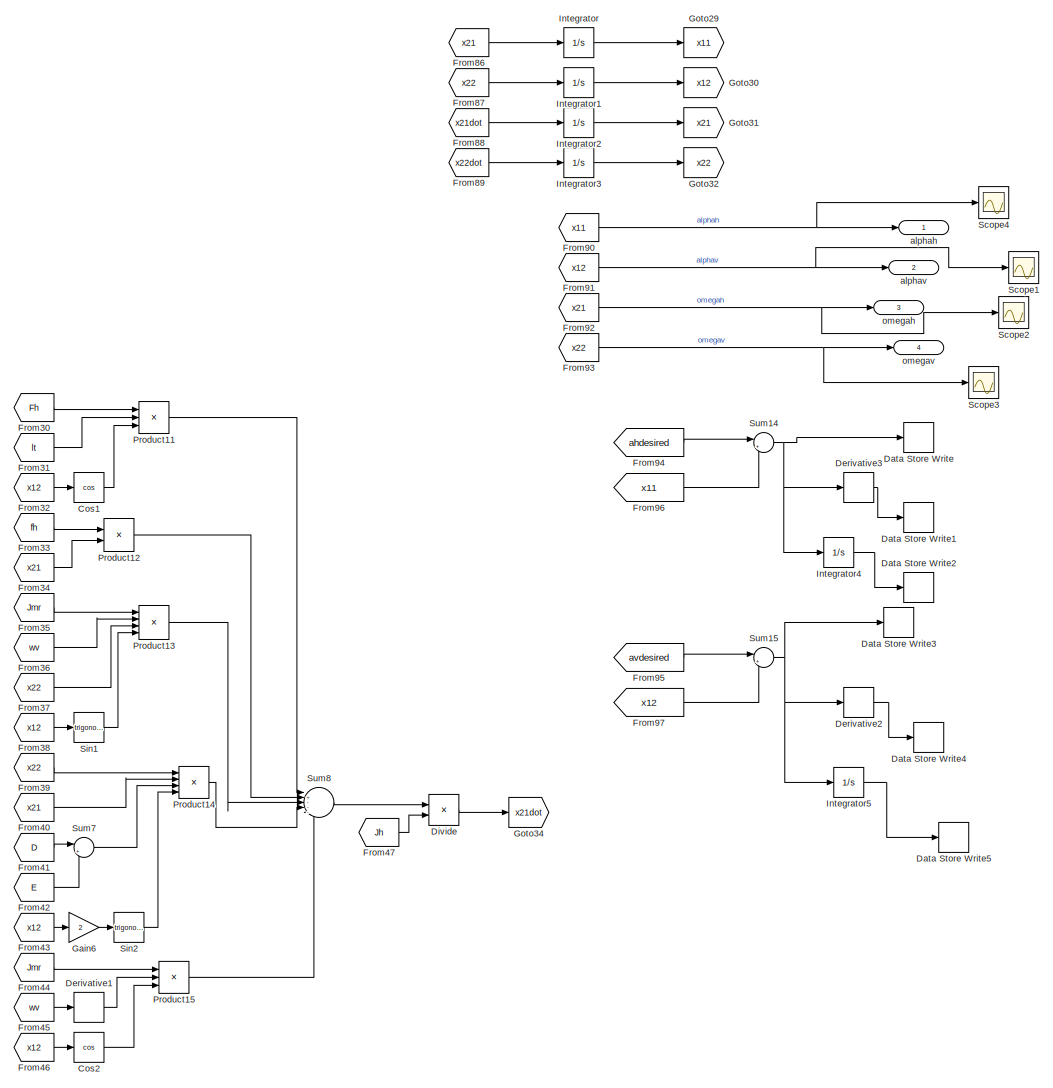
[diagram: Chart/System.StandBy.MainLoop.StartPosTracking.Dynamics - part 1/4, top right region]
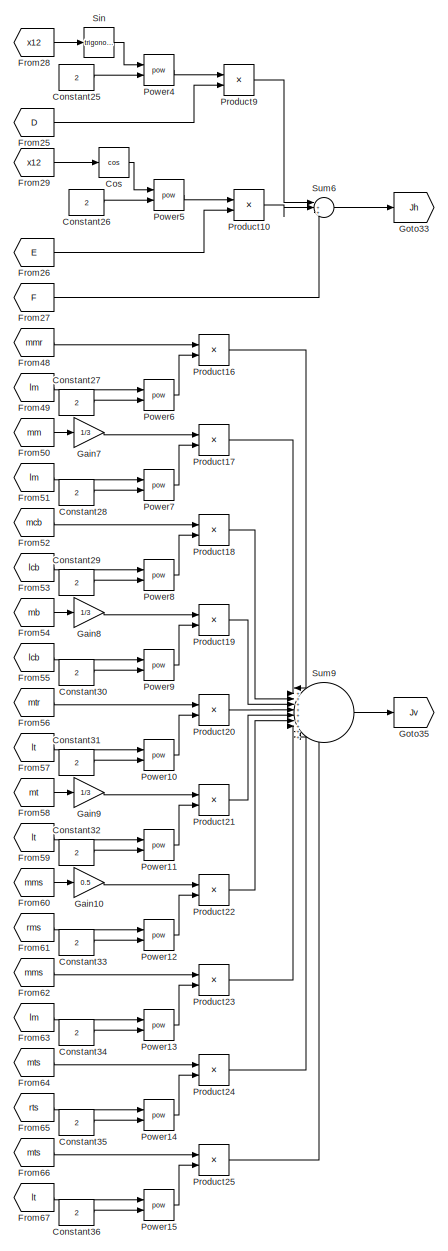
[diagram: Chart/System.StandBy.MainLoop.StartPosTracking.Dynamics - part 2/4, central region]
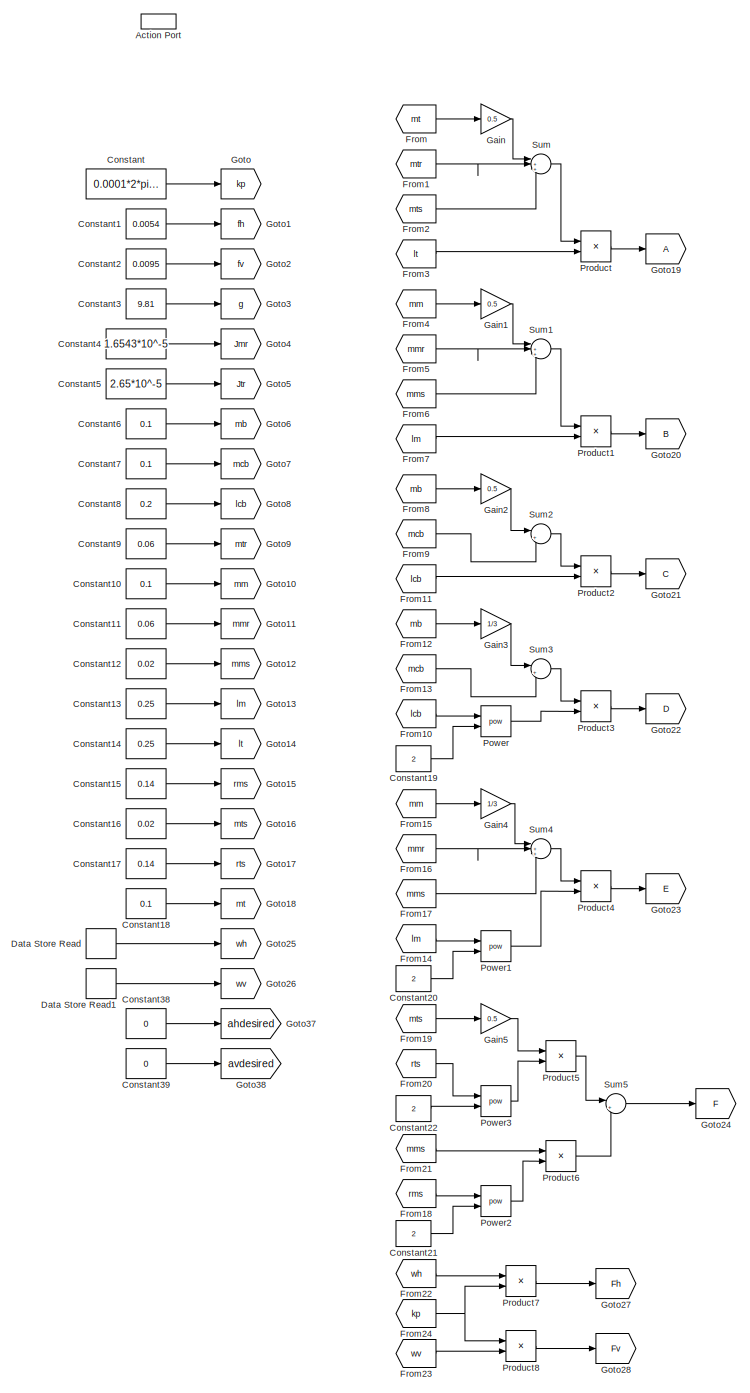
[diagram: Chart/System.StandBy.MainLoop.StartPosTracking.Dynamics - part 3/4, middle left region]
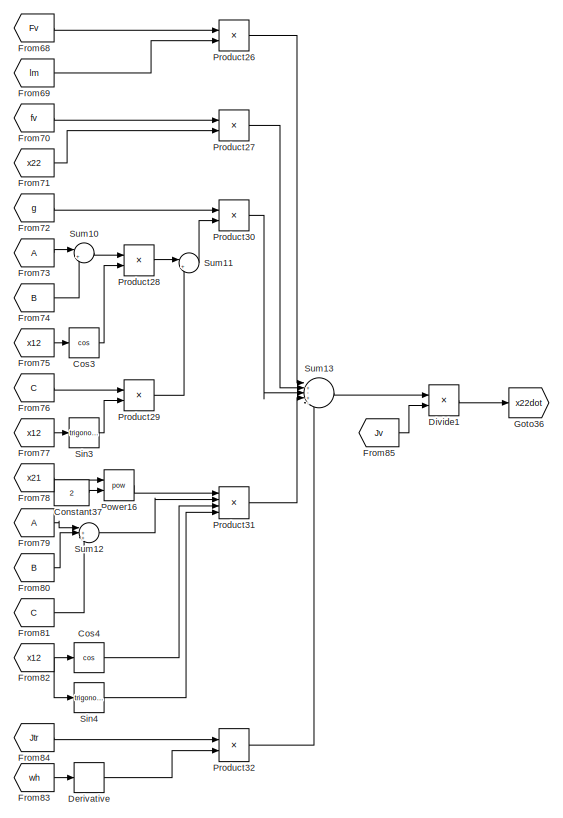
[diagram: Chart/System.StandBy.MainLoop.StartPosTracking.Dynamics - part 4/4, bottom right region]
BLOCK [SubSystem] Chart/System.StandBy.MainLoop.StartPosTracking.Dynamics
  Ports = [0, 4, 0, 0, 0, 0, 0, 1]
  PreDeleteFcn = Stateflow.SLINSF.SimulinkMan.removePreDeleteFcn
  RequestExecContextInheritance = off
  UndoDeleteFcn = Stateflow.SLINSF.SimulinkMan.restorePreDeleteFcn
BLOCK [ActionPort] Chart/System.StandBy.MainLoop.StartPosTracking.Dynamics/Action Port
  CopyFcn = Stateflow.SLINSF.SimulinkMan.removeBlockPreDeleteFcn
  PreDeleteFcn = Stateflow.SLINSF.SimulinkMan.unsafePredeleteFcn
BLOCK [Constant] Chart/System.StandBy.MainLoop.StartPosTracking.Dynamics/Constant
  Value = 0.0001*2*pi/60
BLOCK [Constant] Chart/System.StandBy.MainLoop.StartPosTracking.Dynamics/Constant1
  Value = 0.0054
BLOCK [Constant] Chart/System.StandBy.MainLoop.StartPosTracking.Dynamics/Constant10
  Value = 0.1
BLOCK [Constant] Chart/System.StandBy.MainLoop.StartPosTracking.Dynamics/Constant11
  Value = 0.06
BLOCK [Constant] Chart/System.StandBy.MainLoop.StartPosTracking.Dynamics/Constant12
  Value = 0.02
BLOCK [Constant] Chart/System.StandBy.MainLoop.StartPosTracking.Dynamics/Constant13
  Value = 0.25
BLOCK [Constant] Chart/System.StandBy.MainLoop.StartPosTracking.Dynamics/Constant14
  Value = 0.25
BLOCK [Constant] Chart/System.StandBy.MainLoop.StartPosTracking.Dynamics/Constant15
  Value = 0.14
BLOCK [Constant] Chart/System.StandBy.MainLoop.StartPosTracking.Dynamics/Constant16
  Value = 0.02
BLOCK [Constant] Chart/System.StandBy.MainLoop.StartPosTracking.Dynamics/Constant17
  Value = 0.14
BLOCK [Constant] Chart/System.StandBy.MainLoop.StartPosTracking.Dynamics/Constant18
  Value = 0.1
BLOCK [Constant] Chart/System.StandBy.MainLoop.StartPosTracking.Dynamics/Constant19
  Value = 2
BLOCK [Constant] Chart/System.StandBy.MainLoop.StartPosTracking.Dynamics/Constant2
  Value = 0.0095
BLOCK [Constant] Chart/System.StandBy.MainLoop.StartPosTracking.Dynamics/Constant20
  Value = 2
BLOCK [Constant] Chart/System.StandBy.MainLoop.StartPosTracking.Dynamics/Constant21
  Value = 2
BLOCK [Constant] Chart/System.StandBy.MainLoop.StartPosTracking.Dynamics/Constant22
  Value = 2
BLOCK [Constant] Chart/System.StandBy.MainLoop.StartPosTracking.Dynamics/Constant25
  Value = 2
BLOCK [Constant] Chart/System.StandBy.MainLoop.StartPosTracking.Dynamics/Constant26
  Value = 2
BLOCK [Constant] Chart/System.StandBy.MainLoop.StartPosTracking.Dynamics/Constant27
  Value = 2
BLOCK [Constant] Chart/System.StandBy.MainLoop.StartPosTracking.Dynamics/Constant28
  Value = 2
BLOCK [Constant] Chart/System.StandBy.MainLoop.StartPosTracking.Dynamics/Constant29
  Value = 2
BLOCK [Constant] Chart/System.StandBy.MainLoop.StartPosTracking.Dynamics/Constant3
  Value = 9.81
BLOCK [Constant] Chart/System.StandBy.MainLoop.StartPosTracking.Dynamics/Constant30
  Value = 2
BLOCK [Constant] Chart/System.StandBy.MainLoop.StartPosTracking.Dynamics/Constant31
  Value = 2
BLOCK [Constant] Chart/System.StandBy.MainLoop.StartPosTracking.Dynamics/Constant32
  Value = 2
BLOCK [Constant] Chart/System.StandBy.MainLoop.StartPosTracking.Dynamics/Constant33
  Value = 2
BLOCK [Constant] Chart/System.StandBy.MainLoop.StartPosTracking.Dynamics/Constant34
  Value = 2
BLOCK [Constant] Chart/System.StandBy.MainLoop.StartPosTracking.Dynamics/Constant35
  Value = 2
BLOCK [Constant] Chart/System.StandBy.MainLoop.StartPosTracking.Dynamics/Constant36
  Value = 2
BLOCK [Constant] Chart/System.StandBy.MainLoop.StartPosTracking.Dynamics/Constant37
  Value = 2
BLOCK [Constant] Chart/System.StandBy.MainLoop.StartPosTracking.Dynamics/Constant38
  Value = 0
BLOCK [Constant] Chart/System.StandBy.MainLoop.StartPosTracking.Dynamics/Constant39
  Value = 0
BLOCK [Constant] Chart/System.StandBy.MainLoop.StartPosTracking.Dynamics/Constant4
  Value = 1.6543*10^-5
BLOCK [Constant] Chart/System.StandBy.MainLoop.StartPosTracking.Dynamics/Constant5
  Value = 2.65*10^-5
BLOCK [Constant] Chart/System.StandBy.MainLoop.StartPosTracking.Dynamics/Constant6
  Value = 0.1
BLOCK [Constant] Chart/System.StandBy.MainLoop.StartPosTracking.Dynamics/Constant7
  Value = 0.1
BLOCK [Constant] Chart/System.StandBy.MainLoop.StartPosTracking.Dynamics/Constant8
  Value = 0.2
BLOCK [Constant] Chart/System.StandBy.MainLoop.StartPosTracking.Dynamics/Constant9
  Value = 0.06
BLOCK [Trigonometry] Chart/System.StandBy.MainLoop.StartPosTracking.Dynamics/Cos
  Operator = cos
  Ports = [1, 1]
BLOCK [Trigonometry] Chart/System.StandBy.MainLoop.StartPosTracking.Dynamics/Cos1
  Operator = cos
  Ports = [1, 1]
BLOCK [Trigonometry] Chart/System.StandBy.MainLoop.StartPosTracking.Dynamics/Cos2
  Operator = cos
  Ports = [1, 1]
BLOCK [Trigonometry] Chart/System.StandBy.MainLoop.StartPosTracking.Dynamics/Cos3
  Operator = cos
  Ports = [1, 1]
BLOCK [Trigonometry] Chart/System.StandBy.MainLoop.StartPosTracking.Dynamics/Cos4
  Operator = cos
  Ports = [1, 1]
BLOCK [DataStoreRead] Chart/System.StandBy.MainLoop.StartPosTracking.Dynamics/Data Store Read
  DataStoreName = wh
  Ports = [0, 1]
BLOCK [DataStoreRead] Chart/System.StandBy.MainLoop.StartPosTracking.Dynamics/Data Store Read1
  DataStoreName = wv
  Ports = [0, 1]
BLOCK [DataStoreWrite] Chart/System.StandBy.MainLoop.StartPosTracking.Dynamics/Data Store Write
  DataStoreName = e1
  Ports = [1]
BLOCK [DataStoreWrite] Chart/System.StandBy.MainLoop.StartPosTracking.Dynamics/Data Store Write1
  DataStoreName = e1d
  Ports = [1]
BLOCK [DataStoreWrite] Chart/System.StandBy.MainLoop.StartPosTracking.Dynamics/Data Store Write2
  DataStoreName = e1i
  Ports = [1]
BLOCK [DataStoreWrite] Chart/System.StandBy.MainLoop.StartPosTracking.Dynamics/Data Store Write3
  DataStoreName = e2
  Ports = [1]
BLOCK [DataStoreWrite] Chart/System.StandBy.MainLoop.StartPosTracking.Dynamics/Data Store Write4
  DataStoreName = e2d
  Ports = [1]
BLOCK [DataStoreWrite] Chart/System.StandBy.MainLoop.StartPosTracking.Dynamics/Data Store Write5
  DataStoreName = e2i
  Ports = [1]
BLOCK [Derivative] Chart/System.StandBy.MainLoop.StartPosTracking.Dynamics/Derivative
BLOCK [Derivative] Chart/System.StandBy.MainLoop.StartPosTracking.Dynamics/Derivative1
BLOCK [Derivative] Chart/System.StandBy.MainLoop.StartPosTracking.Dynamics/Derivative2
BLOCK [Derivative] Chart/System.StandBy.MainLoop.StartPosTracking.Dynamics/Derivative3
BLOCK [Product] Chart/System.StandBy.MainLoop.StartPosTracking.Dynamics/Divide
  Inputs = */
  Ports = [2, 1]
BLOCK [Product] Chart/System.StandBy.MainLoop.StartPosTracking.Dynamics/Divide1
  Inputs = */
  Ports = [2, 1]
BLOCK [From] Chart/System.StandBy.MainLoop.StartPosTracking.Dynamics/From
  GotoTag = mt
BLOCK [From] Chart/System.StandBy.MainLoop.StartPosTracking.Dynamics/From1
  GotoTag = mtr
BLOCK [From] Chart/System.StandBy.MainLoop.StartPosTracking.Dynamics/From10
  GotoTag = lcb
BLOCK [From] Chart/System.StandBy.MainLoop.StartPosTracking.Dynamics/From11
  GotoTag = lcb
BLOCK [From] Chart/System.StandBy.MainLoop.StartPosTracking.Dynamics/From12
  GotoTag = mb
BLOCK [From] Chart/System.StandBy.MainLoop.StartPosTracking.Dynamics/From13
  GotoTag = mcb
BLOCK [From] Chart/System.StandBy.MainLoop.StartPosTracking.Dynamics/From14
  GotoTag = lm
BLOCK [From] Chart/System.StandBy.MainLoop.StartPosTracking.Dynamics/From15
  GotoTag = mm
BLOCK [From] Chart/System.StandBy.MainLoop.StartPosTracking.Dynamics/From16
  GotoTag = mmr
BLOCK [From] Chart/System.StandBy.MainLoop.StartPosTracking.Dynamics/From17
  GotoTag = mms
BLOCK [From] Chart/System.StandBy.MainLoop.StartPosTracking.Dynamics/From18
  GotoTag = rms
BLOCK [From] Chart/System.StandBy.MainLoop.StartPosTracking.Dynamics/From19
  GotoTag = mts
BLOCK [From] Chart/System.StandBy.MainLoop.StartPosTracking.Dynamics/From2
  GotoTag = mts
BLOCK [From] Chart/System.StandBy.MainLoop.StartPosTracking.Dynamics/From20
  GotoTag = rts
BLOCK [From] Chart/System.StandBy.MainLoop.StartPosTracking.Dynamics/From21
  GotoTag = mms
BLOCK [From] Chart/System.StandBy.MainLoop.StartPosTracking.Dynamics/From22
  GotoTag = wh
BLOCK [From] Chart/System.StandBy.MainLoop.StartPosTracking.Dynamics/From23
  GotoTag = wv
BLOCK [From] Chart/System.StandBy.MainLoop.StartPosTracking.Dynamics/From24
  GotoTag = kp
BLOCK [From] Chart/System.StandBy.MainLoop.StartPosTracking.Dynamics/From25
  GotoTag = D
BLOCK [From] Chart/System.StandBy.MainLoop.StartPosTracking.Dynamics/From26
  GotoTag = E
BLOCK [From] Chart/System.StandBy.MainLoop.StartPosTracking.Dynamics/From27
  GotoTag = F
BLOCK [From] Chart/System.StandBy.MainLoop.StartPosTracking.Dynamics/From28
  GotoTag = x12
BLOCK [From] Chart/System.StandBy.MainLoop.StartPosTracking.Dynamics/From29
  GotoTag = x12
BLOCK [From] Chart/System.StandBy.MainLoop.StartPosTracking.Dynamics/From3
  GotoTag = lt
BLOCK [From] Chart/System.StandBy.MainLoop.StartPosTracking.Dynamics/From30
  GotoTag = Fh
BLOCK [From] Chart/System.StandBy.MainLoop.StartPosTracking.Dynamics/From31
  GotoTag = lt
BLOCK [From] Chart/System.StandBy.MainLoop.StartPosTracking.Dynamics/From32
  GotoTag = x12
BLOCK [From] Chart/System.StandBy.MainLoop.StartPosTracking.Dynamics/From33
  GotoTag = fh
BLOCK [From] Chart/System.StandBy.MainLoop.StartPosTracking.Dynamics/From34
  GotoTag = x21
BLOCK [From] Chart/System.StandBy.MainLoop.StartPosTracking.Dynamics/From35
  GotoTag = Jmr
BLOCK [From] Chart/System.StandBy.MainLoop.StartPosTracking.Dynamics/From36
  GotoTag = wv
BLOCK [From] Chart/System.StandBy.MainLoop.StartPosTracking.Dynamics/From37
  GotoTag = x22
BLOCK [From] Chart/System.StandBy.MainLoop.StartPosTracking.Dynamics/From38
  GotoTag = x12
BLOCK [From] Chart/System.StandBy.MainLoop.StartPosTracking.Dynamics/From39
  GotoTag = x22
BLOCK [From] Chart/System.StandBy.MainLoop.StartPosTracking.Dynamics/From4
  GotoTag = mm
BLOCK [From] Chart/System.StandBy.MainLoop.StartPosTracking.Dynamics/From40
  GotoTag = x21
BLOCK [From] Chart/System.StandBy.MainLoop.StartPosTracking.Dynamics/From41
  GotoTag = D
BLOCK [From] Chart/System.StandBy.MainLoop.StartPosTracking.Dynamics/From42
  GotoTag = E
BLOCK [From] Chart/System.StandBy.MainLoop.StartPosTracking.Dynamics/From43
  GotoTag = x12
BLOCK [From] Chart/System.StandBy.MainLoop.StartPosTracking.Dynamics/From44
  GotoTag = Jmr
BLOCK [From] Chart/System.StandBy.MainLoop.StartPosTracking.Dynamics/From45
  GotoTag = wv
BLOCK [From] Chart/System.StandBy.MainLoop.StartPosTracking.Dynamics/From46
  GotoTag = x12
BLOCK [From] Chart/System.StandBy.MainLoop.StartPosTracking.Dynamics/From47
  GotoTag = Jh
BLOCK [From] Chart/System.StandBy.MainLoop.StartPosTracking.Dynamics/From48
  GotoTag = mmr
BLOCK [From] Chart/System.StandBy.MainLoop.StartPosTracking.Dynamics/From49
  GotoTag = lm
BLOCK [From] Chart/System.StandBy.MainLoop.StartPosTracking.Dynamics/From5
  GotoTag = mmr
BLOCK [From] Chart/System.StandBy.MainLoop.StartPosTracking.Dynamics/From50
  GotoTag = mm
BLOCK [From] Chart/System.StandBy.MainLoop.StartPosTracking.Dynamics/From51
  GotoTag = lm
BLOCK [From] Chart/System.StandBy.MainLoop.StartPosTracking.Dynamics/From52
  GotoTag = mcb
BLOCK [From] Chart/System.StandBy.MainLoop.StartPosTracking.Dynamics/From53
  GotoTag = lcb
BLOCK [From] Chart/System.StandBy.MainLoop.StartPosTracking.Dynamics/From54
  GotoTag = mb
BLOCK [From] Chart/System.StandBy.MainLoop.StartPosTracking.Dynamics/From55
  GotoTag = lcb
BLOCK [From] Chart/System.StandBy.MainLoop.StartPosTracking.Dynamics/From56
  GotoTag = mtr
BLOCK [From] Chart/System.StandBy.MainLoop.StartPosTracking.Dynamics/From57
  GotoTag = lt
BLOCK [From] Chart/System.StandBy.MainLoop.StartPosTracking.Dynamics/From58
  GotoTag = mt
BLOCK [From] Chart/System.StandBy.MainLoop.StartPosTracking.Dynamics/From59
  GotoTag = lt
BLOCK [From] Chart/System.StandBy.MainLoop.StartPosTracking.Dynamics/From6
  GotoTag = mms
BLOCK [From] Chart/System.StandBy.MainLoop.StartPosTracking.Dynamics/From60
  GotoTag = mms
BLOCK [From] Chart/System.StandBy.MainLoop.StartPosTracking.Dynamics/From61
  GotoTag = rms
BLOCK [From] Chart/System.StandBy.MainLoop.StartPosTracking.Dynamics/From62
  GotoTag = mms
BLOCK [From] Chart/System.StandBy.MainLoop.StartPosTracking.Dynamics/From63
  GotoTag = lm
BLOCK [From] Chart/System.StandBy.MainLoop.StartPosTracking.Dynamics/From64
  GotoTag = mts
BLOCK [From] Chart/System.StandBy.MainLoop.StartPosTracking.Dynamics/From65
  GotoTag = rts
BLOCK [From] Chart/System.StandBy.MainLoop.StartPosTracking.Dynamics/From66
  GotoTag = mts
BLOCK [From] Chart/System.StandBy.MainLoop.StartPosTracking.Dynamics/From67
  GotoTag = lt
BLOCK [From] Chart/System.StandBy.MainLoop.StartPosTracking.Dynamics/From68
  GotoTag = Fv
BLOCK [From] Chart/System.StandBy.MainLoop.StartPosTracking.Dynamics/From69
  GotoTag = lm
BLOCK [From] Chart/System.StandBy.MainLoop.StartPosTracking.Dynamics/From7
  GotoTag = lm
BLOCK [From] Chart/System.StandBy.MainLoop.StartPosTracking.Dynamics/From70
  GotoTag = fv
BLOCK [From] Chart/System.StandBy.MainLoop.StartPosTracking.Dynamics/From71
  GotoTag = x22
BLOCK [From] Chart/System.StandBy.MainLoop.StartPosTracking.Dynamics/From72
  GotoTag = g
BLOCK [From] Chart/System.StandBy.MainLoop.StartPosTracking.Dynamics/From73
BLOCK [From] Chart/System.StandBy.MainLoop.StartPosTracking.Dynamics/From74
  GotoTag = B
BLOCK [From] Chart/System.StandBy.MainLoop.StartPosTracking.Dynamics/From75
  GotoTag = x12
BLOCK [From] Chart/System.StandBy.MainLoop.StartPosTracking.Dynamics/From76
  GotoTag = C
BLOCK [From] Chart/System.StandBy.MainLoop.StartPosTracking.Dynamics/From77
  GotoTag = x12
BLOCK [From] Chart/System.StandBy.MainLoop.StartPosTracking.Dynamics/From78
  GotoTag = x21
BLOCK [From] Chart/System.StandBy.MainLoop.StartPosTracking.Dynamics/From79
BLOCK [From] Chart/System.StandBy.MainLoop.StartPosTracking.Dynamics/From8
  GotoTag = mb
BLOCK [From] Chart/System.StandBy.MainLoop.StartPosTracking.Dynamics/From80
  GotoTag = B
BLOCK [From] Chart/System.StandBy.MainLoop.StartPosTracking.Dynamics/From81
  GotoTag = C
BLOCK [From] Chart/System.StandBy.MainLoop.StartPosTracking.Dynamics/From82
  GotoTag = x12
BLOCK [From] Chart/System.StandBy.MainLoop.StartPosTracking.Dynamics/From83
  GotoTag = wh
BLOCK [From] Chart/System.StandBy.MainLoop.StartPosTracking.Dynamics/From84
  GotoTag = Jtr
BLOCK [From] Chart/System.StandBy.MainLoop.StartPosTracking.Dynamics/From85
  GotoTag = Jv
BLOCK [From] Chart/System.StandBy.MainLoop.StartPosTracking.Dynamics/From86
  GotoTag = x21
BLOCK [From] Chart/System.StandBy.MainLoop.StartPosTracking.Dynamics/From87
  GotoTag = x22
BLOCK [From] Chart/System.StandBy.MainLoop.StartPosTracking.Dynamics/From88
  GotoTag = x21dot
BLOCK [From] Chart/System.StandBy.MainLoop.StartPosTracking.Dynamics/From89
  GotoTag = x22dot
BLOCK [From] Chart/System.StandBy.MainLoop.StartPosTracking.Dynamics/From9
  GotoTag = mcb
BLOCK [From] Chart/System.StandBy.MainLoop.StartPosTracking.Dynamics/From90
  GotoTag = x11
BLOCK [From] Chart/System.StandBy.MainLoop.StartPosTracking.Dynamics/From91
  GotoTag = x12
BLOCK [From] Chart/System.StandBy.MainLoop.StartPosTracking.Dynamics/From92
  GotoTag = x21
BLOCK [From] Chart/System.StandBy.MainLoop.StartPosTracking.Dynamics/From93
  GotoTag = x22
BLOCK [From] Chart/System.StandBy.MainLoop.StartPosTracking.Dynamics/From94
  GotoTag = ahdesired
BLOCK [From] Chart/System.StandBy.MainLoop.StartPosTracking.Dynamics/From95
  GotoTag = avdesired
BLOCK [From] Chart/System.StandBy.MainLoop.StartPosTracking.Dynamics/From96
  GotoTag = x11
BLOCK [From] Chart/System.StandBy.MainLoop.StartPosTracking.Dynamics/From97
  GotoTag = x12
BLOCK [Gain] Chart/System.StandBy.MainLoop.StartPosTracking.Dynamics/Gain
  Gain = 0.5
BLOCK [Gain] Chart/System.StandBy.MainLoop.StartPosTracking.Dynamics/Gain1
  Gain = 0.5
BLOCK [Gain] Chart/System.StandBy.MainLoop.StartPosTracking.Dynamics/Gain10
  Gain = 0.5
BLOCK [Gain] Chart/System.StandBy.MainLoop.StartPosTracking.Dynamics/Gain2
  Gain = 0.5
BLOCK [Gain] Chart/System.StandBy.MainLoop.StartPosTracking.Dynamics/Gain3
  Gain = 1/3
BLOCK [Gain] Chart/System.StandBy.MainLoop.StartPosTracking.Dynamics/Gain4
  Gain = 1/3
BLOCK [Gain] Chart/System.StandBy.MainLoop.StartPosTracking.Dynamics/Gain5
  Gain = 0.5
BLOCK [Gain] Chart/System.StandBy.MainLoop.StartPosTracking.Dynamics/Gain6
  Gain = 2
BLOCK [Gain] Chart/System.StandBy.MainLoop.StartPosTracking.Dynamics/Gain7
  Gain = 1/3
BLOCK [Gain] Chart/System.StandBy.MainLoop.StartPosTracking.Dynamics/Gain8
  Gain = 1/3
BLOCK [Gain] Chart/System.StandBy.MainLoop.StartPosTracking.Dynamics/Gain9
  Gain = 1/3
BLOCK [Goto] Chart/System.StandBy.MainLoop.StartPosTracking.Dynamics/Goto
  GotoTag = kp
BLOCK [Goto] Chart/System.StandBy.MainLoop.StartPosTracking.Dynamics/Goto1
  GotoTag = fh
BLOCK [Goto] Chart/System.StandBy.MainLoop.StartPosTracking.Dynamics/Goto10
  GotoTag = mm
BLOCK [Goto] Chart/System.StandBy.MainLoop.StartPosTracking.Dynamics/Goto11
  GotoTag = mmr
BLOCK [Goto] Chart/System.StandBy.MainLoop.StartPosTracking.Dynamics/Goto12
  GotoTag = mms
BLOCK [Goto] Chart/System.StandBy.MainLoop.StartPosTracking.Dynamics/Goto13
  GotoTag = lm
BLOCK [Goto] Chart/System.StandBy.MainLoop.StartPosTracking.Dynamics/Goto14
  GotoTag = lt
BLOCK [Goto] Chart/System.StandBy.MainLoop.StartPosTracking.Dynamics/Goto15
  GotoTag = rms
BLOCK [Goto] Chart/System.StandBy.MainLoop.StartPosTracking.Dynamics/Goto16
  GotoTag = mts
BLOCK [Goto] Chart/System.StandBy.MainLoop.StartPosTracking.Dynamics/Goto17
  GotoTag = rts
BLOCK [Goto] Chart/System.StandBy.MainLoop.StartPosTracking.Dynamics/Goto18
  GotoTag = mt
BLOCK [Goto] Chart/System.StandBy.MainLoop.StartPosTracking.Dynamics/Goto19
BLOCK [Goto] Chart/System.StandBy.MainLoop.StartPosTracking.Dynamics/Goto2
  GotoTag = fv
BLOCK [Goto] Chart/System.StandBy.MainLoop.StartPosTracking.Dynamics/Goto20
  GotoTag = B
BLOCK [Goto] Chart/System.StandBy.MainLoop.StartPosTracking.Dynamics/Goto21
  GotoTag = C
BLOCK [Goto] Chart/System.StandBy.MainLoop.StartPosTracking.Dynamics/Goto22
  GotoTag = D
BLOCK [Goto] Chart/System.StandBy.MainLoop.StartPosTracking.Dynamics/Goto23
  GotoTag = E
BLOCK [Goto] Chart/System.StandBy.MainLoop.StartPosTracking.Dynamics/Goto24
  GotoTag = F
BLOCK [Goto] Chart/System.StandBy.MainLoop.StartPosTracking.Dynamics/Goto25
  GotoTag = wh
BLOCK [Goto] Chart/System.StandBy.MainLoop.StartPosTracking.Dynamics/Goto26
  GotoTag = wv
BLOCK [Goto] Chart/System.StandBy.MainLoop.StartPosTracking.Dynamics/Goto27
  GotoTag = Fh
BLOCK [Goto] Chart/System.StandBy.MainLoop.StartPosTracking.Dynamics/Goto28
  GotoTag = Fv
BLOCK [Goto] Chart/System.StandBy.MainLoop.StartPosTracking.Dynamics/Goto29
  GotoTag = x11
BLOCK [Goto] Chart/System.StandBy.MainLoop.StartPosTracking.Dynamics/Goto3
  GotoTag = g
BLOCK [Goto] Chart/System.StandBy.MainLoop.StartPosTracking.Dynamics/Goto30
  GotoTag = x12
BLOCK [Goto] Chart/System.StandBy.MainLoop.StartPosTracking.Dynamics/Goto31
  GotoTag = x21
BLOCK [Goto] Chart/System.StandBy.MainLoop.StartPosTracking.Dynamics/Goto32
  GotoTag = x22
BLOCK [Goto] Chart/System.StandBy.MainLoop.StartPosTracking.Dynamics/Goto33
  GotoTag = Jh
BLOCK [Goto] Chart/System.StandBy.MainLoop.StartPosTracking.Dynamics/Goto34
  GotoTag = x21dot
BLOCK [Goto] Chart/System.StandBy.MainLoop.StartPosTracking.Dynamics/Goto35
  GotoTag = Jv
BLOCK [Goto] Chart/System.StandBy.MainLoop.StartPosTracking.Dynamics/Goto36
  GotoTag = x22dot
BLOCK [Goto] Chart/System.StandBy.MainLoop.StartPosTracking.Dynamics/Goto37
  GotoTag = ahdesired
BLOCK [Goto] Chart/System.StandBy.MainLoop.StartPosTracking.Dynamics/Goto38
  GotoTag = avdesired
BLOCK [Goto] Chart/System.StandBy.MainLoop.StartPosTracking.Dynamics/Goto4
  GotoTag = Jmr
BLOCK [Goto] Chart/System.StandBy.MainLoop.StartPosTracking.Dynamics/Goto5
  GotoTag = Jtr
BLOCK [Goto] Chart/System.StandBy.MainLoop.StartPosTracking.Dynamics/Goto6
  GotoTag = mb
BLOCK [Goto] Chart/System.StandBy.MainLoop.StartPosTracking.Dynamics/Goto7
  GotoTag = mcb
BLOCK [Goto] Chart/System.StandBy.MainLoop.StartPosTracking.Dynamics/Goto8
  GotoTag = lcb
BLOCK [Goto] Chart/System.StandBy.MainLoop.StartPosTracking.Dynamics/Goto9
  GotoTag = mtr
BLOCK [Integrator] Chart/System.StandBy.MainLoop.StartPosTracking.Dynamics/Integrator
  ContinuousStateAttributes = 'alphah'
  InitialCondition = 0.1
  Ports = [1, 1]
  WrapState = on
BLOCK [Integrator] Chart/System.StandBy.MainLoop.StartPosTracking.Dynamics/Integrator1
  ContinuousStateAttributes = 'alphav'
  InitialCondition = 0.1
  Ports = [1, 1]
  WrapState = on
BLOCK [Integrator] Chart/System.StandBy.MainLoop.StartPosTracking.Dynamics/Integrator2
  ContinuousStateAttributes = 'omegah'
  Ports = [1, 1]
BLOCK [Integrator] Chart/System.StandBy.MainLoop.StartPosTracking.Dynamics/Integrator3
  ContinuousStateAttributes = 'omegah'
  Ports = [1, 1]
BLOCK [Integrator] Chart/System.StandBy.MainLoop.StartPosTracking.Dynamics/Integrator4
  ContinuousStateAttributes = 'omegah'
  Ports = [1, 1]
BLOCK [Integrator] Chart/System.StandBy.MainLoop.StartPosTracking.Dynamics/Integrator5
  ContinuousStateAttributes = 'omegah'
  Ports = [1, 1]
BLOCK [Math] Chart/System.StandBy.MainLoop.StartPosTracking.Dynamics/Power
  Operator = pow
  Ports = [2, 1]
BLOCK [Math] Chart/System.StandBy.MainLoop.StartPosTracking.Dynamics/Power1
  Operator = pow
  Ports = [2, 1]
BLOCK [Math] Chart/System.StandBy.MainLoop.StartPosTracking.Dynamics/Power10
  Operator = pow
  Ports = [2, 1]
BLOCK [Math] Chart/System.StandBy.MainLoop.StartPosTracking.Dynamics/Power11
  Operator = pow
  Ports = [2, 1]
BLOCK [Math] Chart/System.StandBy.MainLoop.StartPosTracking.Dynamics/Power12
  Operator = pow
  Ports = [2, 1]
BLOCK [Math] Chart/System.StandBy.MainLoop.StartPosTracking.Dynamics/Power13
  Operator = pow
  Ports = [2, 1]
BLOCK [Math] Chart/System.StandBy.MainLoop.StartPosTracking.Dynamics/Power14
  Operator = pow
  Ports = [2, 1]
BLOCK [Math] Chart/System.StandBy.MainLoop.StartPosTracking.Dynamics/Power15
  Operator = pow
  Ports = [2, 1]
BLOCK [Math] Chart/System.StandBy.MainLoop.StartPosTracking.Dynamics/Power16
  Operator = pow
  Ports = [2, 1]
BLOCK [Math] Chart/System.StandBy.MainLoop.StartPosTracking.Dynamics/Power2
  Operator = pow
  Ports = [2, 1]
BLOCK [Math] Chart/System.StandBy.MainLoop.StartPosTracking.Dynamics/Power3
  Operator = pow
  Ports = [2, 1]
BLOCK [Math] Chart/System.StandBy.MainLoop.StartPosTracking.Dynamics/Power4
  Operator = pow
  Ports = [2, 1]
BLOCK [Math] Chart/System.StandBy.MainLoop.StartPosTracking.Dynamics/Power5
  Operator = pow
  Ports = [2, 1]
BLOCK [Math] Chart/System.StandBy.MainLoop.StartPosTracking.Dynamics/Power6
  Operator = pow
  Ports = [2, 1]
BLOCK [Math] Chart/System.StandBy.MainLoop.StartPosTracking.Dynamics/Power7
  Operator = pow
  Ports = [2, 1]
BLOCK [Math] Chart/System.StandBy.MainLoop.StartPosTracking.Dynamics/Power8
  Operator = pow
  Ports = [2, 1]
BLOCK [Math] Chart/System.StandBy.MainLoop.StartPosTracking.Dynamics/Power9
  Operator = pow
  Ports = [2, 1]
BLOCK [Product] Chart/System.StandBy.MainLoop.StartPosTracking.Dynamics/Product
  Ports = [2, 1]
BLOCK [Product] Chart/System.StandBy.MainLoop.StartPosTracking.Dynamics/Product1
  Ports = [2, 1]
BLOCK [Product] Chart/System.StandBy.MainLoop.StartPosTracking.Dynamics/Product10
  Ports = [2, 1]
BLOCK [Product] Chart/System.StandBy.MainLoop.StartPosTracking.Dynamics/Product11
  Inputs = 3
  Ports = [3, 1]
BLOCK [Product] Chart/System.StandBy.MainLoop.StartPosTracking.Dynamics/Product12
  Ports = [2, 1]
BLOCK [Product] Chart/System.StandBy.MainLoop.StartPosTracking.Dynamics/Product13
  Inputs = 4
  Ports = [4, 1]
BLOCK [Product] Chart/System.StandBy.MainLoop.StartPosTracking.Dynamics/Product14
  Inputs = 4
  Ports = [4, 1]
BLOCK [Product] Chart/System.StandBy.MainLoop.StartPosTracking.Dynamics/Product15
  Inputs = 3
  Ports = [3, 1]
BLOCK [Product] Chart/System.StandBy.MainLoop.StartPosTracking.Dynamics/Product16
  Ports = [2, 1]
BLOCK [Product] Chart/System.StandBy.MainLoop.StartPosTracking.Dynamics/Product17
  Ports = [2, 1]
BLOCK [Product] Chart/System.StandBy.MainLoop.StartPosTracking.Dynamics/Product18
  Ports = [2, 1]
BLOCK [Product] Chart/System.StandBy.MainLoop.StartPosTracking.Dynamics/Product19
  Ports = [2, 1]
BLOCK [Product] Chart/System.StandBy.MainLoop.StartPosTracking.Dynamics/Product2
  Ports = [2, 1]
BLOCK [Product] Chart/System.StandBy.MainLoop.StartPosTracking.Dynamics/Product20
  Ports = [2, 1]
BLOCK [Product] Chart/System.StandBy.MainLoop.StartPosTracking.Dynamics/Product21
  Ports = [2, 1]
BLOCK [Product] Chart/System.StandBy.MainLoop.StartPosTracking.Dynamics/Product22
  Ports = [2, 1]
BLOCK [Product] Chart/System.StandBy.MainLoop.StartPosTracking.Dynamics/Product23
  Ports = [2, 1]
BLOCK [Product] Chart/System.StandBy.MainLoop.StartPosTracking.Dynamics/Product24
  Ports = [2, 1]
BLOCK [Product] Chart/System.StandBy.MainLoop.StartPosTracking.Dynamics/Product25
  Ports = [2, 1]
BLOCK [Product] Chart/System.StandBy.MainLoop.StartPosTracking.Dynamics/Product26
  Ports = [2, 1]
BLOCK [Product] Chart/System.StandBy.MainLoop.StartPosTracking.Dynamics/Product27
  Ports = [2, 1]
BLOCK [Product] Chart/System.StandBy.MainLoop.StartPosTracking.Dynamics/Product28
  Ports = [2, 1]
BLOCK [Product] Chart/System.StandBy.MainLoop.StartPosTracking.Dynamics/Product29
  Ports = [2, 1]
BLOCK [Product] Chart/System.StandBy.MainLoop.StartPosTracking.Dynamics/Product3
  Ports = [2, 1]
BLOCK [Product] Chart/System.StandBy.MainLoop.StartPosTracking.Dynamics/Product30
  Ports = [2, 1]
BLOCK [Product] Chart/System.StandBy.MainLoop.StartPosTracking.Dynamics/Product31
  Inputs = 4
  Ports = [4, 1]
BLOCK [Product] Chart/System.StandBy.MainLoop.StartPosTracking.Dynamics/Product32
  Ports = [2, 1]
BLOCK [Product] Chart/System.StandBy.MainLoop.StartPosTracking.Dynamics/Product4
  Ports = [2, 1]
BLOCK [Product] Chart/System.StandBy.MainLoop.StartPosTracking.Dynamics/Product5
  Ports = [2, 1]
BLOCK [Product] Chart/System.StandBy.MainLoop.StartPosTracking.Dynamics/Product6
  Ports = [2, 1]
BLOCK [Product] Chart/System.StandBy.MainLoop.StartPosTracking.Dynamics/Product7
  Ports = [2, 1]
BLOCK [Product] Chart/System.StandBy.MainLoop.StartPosTracking.Dynamics/Product8
  Ports = [2, 1]
BLOCK [Product] Chart/System.StandBy.MainLoop.StartPosTracking.Dynamics/Product9
  Ports = [2, 1]
BLOCK [Scope] Chart/System.StandBy.MainLoop.StartPosTracking.Dynamics/Scope1
  Floating = off
  NumInputPorts = 1
  Ports = [1]
  ScopeSpecificationString = Simulink.scopes.TimeScopeBlockCfg('CurrentConfiguration', extmgr.ConfigurationSet(extmgr.Configuration('Core','General UI',true),extmgr.Configuration('Core','Source UI',true),extmgr.Configuration('Sources','WiredSimulink',true,'DataLoggingVariableName','ScopeData1'),extmgr.Configuration('Visuals','Time Domain',true,'SerializedDisplays',{struct('MinYLimReal','-0.00008','MaxYLimReal','0.00009','YLab...<+1423ch>
BLOCK [Scope] Chart/System.StandBy.MainLoop.StartPosTracking.Dynamics/Scope2
  Floating = off
  NumInputPorts = 1
  Ports = [1]
  ScopeSpecificationString = Simulink.scopes.TimeScopeBlockCfg('CurrentConfiguration', extmgr.ConfigurationSet(extmgr.Configuration('Core','General UI',true),extmgr.Configuration('Core','Source UI',true),extmgr.Configuration('Sources','WiredSimulink',true,'DataLoggingVariableName','ScopeData2'),extmgr.Configuration('Visuals','Time Domain',true,'SerializedDisplays',{struct('MinYLimReal','-0.01235','MaxYLimReal','0.01486','YLab...<+1390ch>
BLOCK [Scope] Chart/System.StandBy.MainLoop.StartPosTracking.Dynamics/Scope3
  Floating = off
  NumInputPorts = 1
  Ports = [1]
  ScopeSpecificationString = Simulink.scopes.TimeScopeBlockCfg('CurrentConfiguration', extmgr.ConfigurationSet(extmgr.Configuration('Core','General UI',true),extmgr.Configuration('Core','Source UI',true),extmgr.Configuration('Sources','WiredSimulink',true,'DataLoggingVariableName','ScopeData3'),extmgr.Configuration('Visuals','Time Domain',true,'SerializedDisplays',{struct('MinYLimReal','-0.04371','MaxYLimReal','0.0382','YLabe...<+1363ch>
BLOCK [Scope] Chart/System.StandBy.MainLoop.StartPosTracking.Dynamics/Scope4
  Floating = off
  NumInputPorts = 1
  Ports = [1]
  ScopeSpecificationString = Simulink.scopes.TimeScopeBlockCfg('CurrentConfiguration', extmgr.ConfigurationSet(extmgr.Configuration('Core','General UI',true),extmgr.Configuration('Core','Source UI',true),extmgr.Configuration('Sources','WiredSimulink',true,'DataLoggingVariableName','ScopeData4'),extmgr.Configuration('Visuals','Time Domain',true,'SerializedDisplays',{struct('MinYLimReal','-0.00005','MaxYLimReal','0.000004','YLa...<+1427ch>
BLOCK [Trigonometry] Chart/System.StandBy.MainLoop.StartPosTracking.Dynamics/Sin
  Ports = [1, 1]
BLOCK [Trigonometry] Chart/System.StandBy.MainLoop.StartPosTracking.Dynamics/Sin1
  Ports = [1, 1]
BLOCK [Trigonometry] Chart/System.StandBy.MainLoop.StartPosTracking.Dynamics/Sin2
  Ports = [1, 1]
BLOCK [Trigonometry] Chart/System.StandBy.MainLoop.StartPosTracking.Dynamics/Sin3
  Ports = [1, 1]
BLOCK [Trigonometry] Chart/System.StandBy.MainLoop.StartPosTracking.Dynamics/Sin4
  Ports = [1, 1]
BLOCK [Sum] Chart/System.StandBy.MainLoop.StartPosTracking.Dynamics/Sum
  Inputs = |+++
  Ports = [3, 1]
BLOCK [Sum] Chart/System.StandBy.MainLoop.StartPosTracking.Dynamics/Sum1
  Inputs = |+++
  Ports = [3, 1]
BLOCK [Sum] Chart/System.StandBy.MainLoop.StartPosTracking.Dynamics/Sum10
  Inputs = |+-
  Ports = [2, 1]
BLOCK [Sum] Chart/System.StandBy.MainLoop.StartPosTracking.Dynamics/Sum11
  Inputs = |+-
  Ports = [2, 1]
BLOCK [Sum] Chart/System.StandBy.MainLoop.StartPosTracking.Dynamics/Sum12
  Inputs = |+++
  Ports = [3, 1]
BLOCK [Sum] Chart/System.StandBy.MainLoop.StartPosTracking.Dynamics/Sum13
  Inputs = |+-+-+
  Ports = [5, 1]
BLOCK [Sum] Chart/System.StandBy.MainLoop.StartPosTracking.Dynamics/Sum14
  Inputs = |+-
  Ports = [2, 1]
BLOCK [Sum] Chart/System.StandBy.MainLoop.StartPosTracking.Dynamics/Sum15
  Inputs = |+-
  Ports = [2, 1]
BLOCK [Sum] Chart/System.StandBy.MainLoop.StartPosTracking.Dynamics/Sum2
  Inputs = |++
  Ports = [2, 1]
BLOCK [Sum] Chart/System.StandBy.MainLoop.StartPosTracking.Dynamics/Sum3
  Inputs = |++
  Ports = [2, 1]
BLOCK [Sum] Chart/System.StandBy.MainLoop.StartPosTracking.Dynamics/Sum4
  Inputs = |+++
  Ports = [3, 1]
BLOCK [Sum] Chart/System.StandBy.MainLoop.StartPosTracking.Dynamics/Sum5
  Inputs = |++
  Ports = [2, 1]
BLOCK [Sum] Chart/System.StandBy.MainLoop.StartPosTracking.Dynamics/Sum6
  Inputs = |+++
  Ports = [3, 1]
BLOCK [Sum] Chart/System.StandBy.MainLoop.StartPosTracking.Dynamics/Sum7
  Inputs = |+-
  Ports = [2, 1]
BLOCK [Sum] Chart/System.StandBy.MainLoop.StartPosTracking.Dynamics/Sum8
  Inputs = |+---+
  Ports = [5, 1]
BLOCK [Sum] Chart/System.StandBy.MainLoop.StartPosTracking.Dynamics/Sum9
  Inputs = |++++++++++
  Ports = [10, 1]
BLOCK [Outport] Chart/System.StandBy.MainLoop.StartPosTracking.Dynamics/alphah
  IconDisplay = Signal name
BLOCK [Outport] Chart/System.StandBy.MainLoop.StartPosTracking.Dynamics/alphav
  IconDisplay = Signal name
  Port = 2
BLOCK [Outport] Chart/System.StandBy.MainLoop.StartPosTracking.Dynamics/omegah
  IconDisplay = Signal name
  Port = 3
BLOCK [Outport] Chart/System.StandBy.MainLoop.StartPosTracking.Dynamics/omegav
  IconDisplay = Signal name
  Port = 4
BLOCK [Outport] Chart/alphah
  Port = 5
BLOCK [Outport] Chart/alphav
  Port = 6
BLOCK [Inport] Chart/ench
  Port = 2
BLOCK [Inport] Chart/encv
  Port = 3
BLOCK [Outport] Chart/omegah
  Port = 7
BLOCK [Outport] Chart/omegav
  Port = 8
BLOCK [Constant] Constant
BLOCK [Constant] Constant1
  Value = 0
BLOCK [Constant] Constant2
BLOCK [Constant] Constant3
BLOCK [DataStoreMemory] Data Store Memory
  DataStoreName = wh
  OutDataTypeStr = double
  ReadBeforeWriteMsg = warning
  ShowAdditionalParam = off
  SignalType = real
  WriteAfterReadMsg = warning
  WriteAfterWriteMsg = warning
BLOCK [DataStoreMemory] Data Store Memory1
  DataStoreName = wv
  OutDataTypeStr = double
  ReadBeforeWriteMsg = warning
  ShowAdditionalParam = off
  SignalType = real
  WriteAfterReadMsg = warning
  WriteAfterWriteMsg = warning
BLOCK [DataStoreMemory] Data Store Memory2
  DataStoreName = e1
  OutDataTypeStr = double
  ReadBeforeWriteMsg = warning
  ShowAdditionalParam = off
  SignalType = real
  WriteAfterReadMsg = warning
  WriteAfterWriteMsg = warning
BLOCK [DataStoreMemory] Data Store Memory3
  DataStoreName = e2
  OutDataTypeStr = double
  ReadBeforeWriteMsg = warning
  ShowAdditionalParam = off
  SignalType = real
  WriteAfterReadMsg = warning
  WriteAfterWriteMsg = warning
BLOCK [DataStoreMemory] Data Store Memory4
  DataStoreName = e2d
  OutDataTypeStr = double
  ReadBeforeWriteMsg = warning
  ShowAdditionalParam = off
  SignalType = real
  WriteAfterReadMsg = warning
  WriteAfterWriteMsg = warning
BLOCK [DataStoreMemory] Data Store Memory5
  DataStoreName = e1d
  OutDataTypeStr = double
  ReadBeforeWriteMsg = warning
  ShowAdditionalParam = off
  SignalType = real
  WriteAfterReadMsg = warning
  WriteAfterWriteMsg = warning
BLOCK [DataStoreMemory] Data Store Memory6
  DataStoreName = e1i
  OutDataTypeStr = double
  ReadBeforeWriteMsg = warning
  ShowAdditionalParam = off
  SignalType = real
  WriteAfterReadMsg = warning
  WriteAfterWriteMsg = warning
BLOCK [DataStoreMemory] Data Store Memory7
  DataStoreName = e2i
  OutDataTypeStr = double
  ReadBeforeWriteMsg = warning
  ShowAdditionalParam = off
  SignalType = real
  WriteAfterReadMsg = warning
  WriteAfterWriteMsg = warning
BLOCK [DataStoreRead] Data Store Read
  DataStoreName = e1
  Ports = [0, 1]
BLOCK [DataStoreRead] Data Store Read1
  DataStoreName = e2
  Ports = [0, 1]
BLOCK [Display] Display
  Decimation = 1
  Ports = [1]
BLOCK [Display] Display1
  Decimation = 1
  Ports = [1]
BLOCK [Display] Display2
  Decimation = 1
  Ports = [1]
BLOCK [Display] Display3
  Decimation = 1
  Ports = [1]
BLOCK [SliderSwitchBlock] Emergency
BLOCK [SliderSwitchBlock] ON
BLOCK [Scope] Scope
  Floating = off
  NumInputPorts = 1
  Ports = [1]
  ScopeSpecificationString = Simulink.scopes.TimeScopeBlockCfg('CurrentConfiguration', extmgr.ConfigurationSet(extmgr.Configuration('Core','General UI',true),extmgr.Configuration('Core','Source UI',true),extmgr.Configuration('Sources','WiredSimulink',true,'DataLoggingVariableName','ScopeData5'),extmgr.Configuration('Visuals','Time Domain',true,'SerializedDisplays',{struct('MinYLimReal','-0.20569','MaxYLimReal','0.0394','YLabe...<+1428ch>
BLOCK [Scope] Scope1
  Floating = off
  NumInputPorts = 1
  Ports = [1]
  ScopeSpecificationString = Simulink.scopes.TimeScopeBlockCfg('CurrentConfiguration', extmgr.ConfigurationSet(extmgr.Configuration('Core','General UI',true),extmgr.Configuration('Core','Source UI',true),extmgr.Configuration('Sources','WiredSimulink',true,'DataLoggingVariableName','ScopeData6'),extmgr.Configuration('Visuals','Time Domain',true,'SerializedDisplays',{struct('MinYLimReal','-0.00283','MaxYLimReal','0.00354','YLab...<+1400ch>
LINE Chart:1 -> Display:1
LINE Chart:2 -> Display1:1
LINE Chart:3 -> Display2:1
LINE Chart:4 -> Display3:1
LINE Constant1:1 -> Chart:4
LINE Constant2:1 -> Chart:2
LINE Constant3:1 -> Chart:3
LINE Constant:1 -> Chart:1
LINE Data Store Read1:1 -> Scope1:1
LINE Data Store Read:1 -> Scope:1
CHART Chart states=18 transitions=14
  STATE_LABEL 'System'
  STATE_LABEL 'StandBy\nentry:\nMotorhOn = 1\nMotorvOn = 1\nmotorcalibration = 0\nsensorcalibration = 0'
  STATE_LABEL 'MainLoop\nentry:\nalphah = 0\nalphav = 0\nomegah = 0\nomegav = 0\ne1 = 0\ne1d = 0\ne1i = 0\ne2 = 0\ne2d = 0\ne2i = 0\n'
  STATE_LABEL 'StartPosTracking'
  STATE_LABEL 'Controller'
  STATE_LABEL 'Dynamics'
  STATE_LABEL 'Controller\nduring:\nwh = kp*e1 + ki*e1i + kd*e1d\nwv = kp*e2 + ki*e2i + kd*e2d\n'
  STATE_LABEL '[x11,x12,x21,x22] = Dynamics'
  STATE_LABEL 'Calibration'
  STATE_LABEL 'MotorCalibration'
  STATE_LABEL 'High\nentry:MotorhSignal = 2000\nMotorvSignal = 2000'
  STATE_LABEL 'Low\nentry:MotorhSignal = 1000\nMotorvSignal = 1000'
  STATE_LABEL 'FinishCalibrationMotor\nentry:\nwv = 0\nwh = 0\nmotorcalibration = 1'
  STATE_LABEL 'after(2,sec)'
  STATE_LABEL 'SensorCalibration\n\n'
  STATE_LABEL 'ReadData\nentry:\nzeroPosh = ench\nzeroPosv = encv'
  STATE_LABEL 'FinishCalibrationSensor\nentry:\nsensorcalibration = 1'
  STATE_LABEL 'after(2,sec)'
  STATE_LABEL '[motorcalibration == 1 && sensorcalibration == 1]'
  STATE_LABEL 'OFF\nentry:\nMotorhOn = 0\nMotorvOn = 0'
  STATE_LABEL 'Emergency\nentry:\nMotorhOn = 0\nMotorvOn = 0'
  STATE_LABEL '[ON == 0]'
  STATE_LABEL '[ON == 1]'
  STATE_LABEL '[Emergency == 1]'
  STATE_LABEL '[Emergency == 0]'
  STATE_LABEL 'StandBy\nentry:\nMotorhOn = 1\nMotorvOn = 1\nmotorcalibration = 0\nsensorcalibration = 0'
  STATE_LABEL 'MainLoop\nentry:\nalphah = 0\nalphav = 0\nomegah = 0\nomegav = 0\ne1 = 0\ne1d = 0\ne1i = 0\ne2 = 0\ne2d = 0\ne2i = 0\n'
  STATE_LABEL 'StartPosTracking'
  STATE_LABEL 'Controller'
  STATE_LABEL 'Dynamics'
  STATE_LABEL 'Controller\nduring:\nwh = kp*e1 + ki*e1i + kd*e1d\nwv = kp*e2 + ki*e2i + kd*e2d\n'
  STATE_LABEL '[x11,x12,x21,x22] = Dynamics'
  STATE_LABEL 'Calibration'
  STATE_LABEL 'MotorCalibration'
  STATE_LABEL 'High\nentry:MotorhSignal = 2000\nMotorvSignal = 2000'
  STATE_LABEL 'Low\nentry:MotorhSignal = 1000\nMotorvSignal = 1000'
  STATE_LABEL 'FinishCalibrationMotor\nentry:\nwv = 0\nwh = 0\nmotorcalibration = 1'
  STATE_LABEL 'after(2,sec)'
  STATE_LABEL 'SensorCalibration\n\n'
  STATE_LABEL 'ReadData\nentry:\nzeroPosh = ench\nzeroPosv = encv'
CHART  states=0 transitions=0
